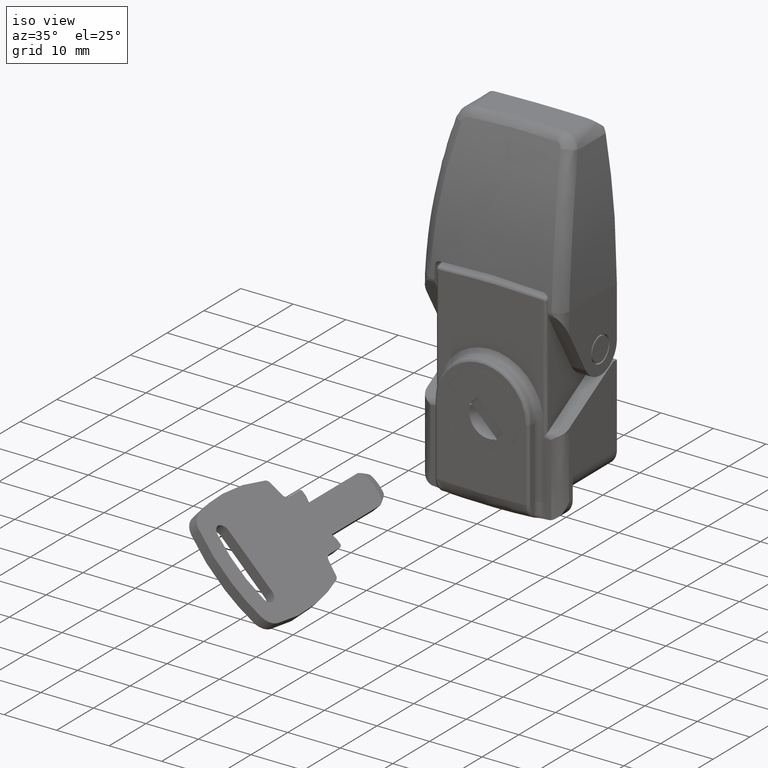
[diagram: clean part render]
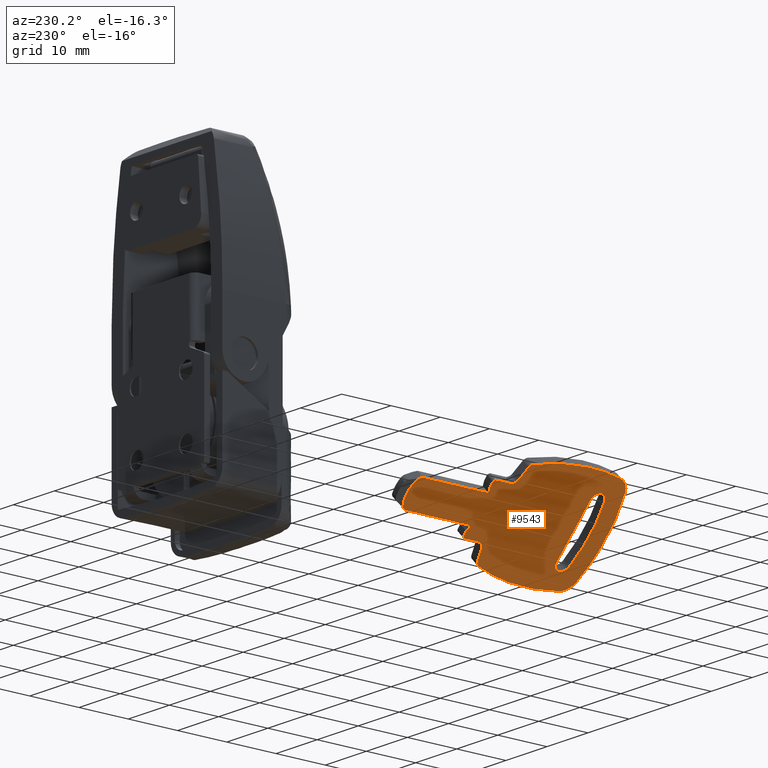
[diagram: tour spotlight — one face highlighted and labeled with its STEP entity id]
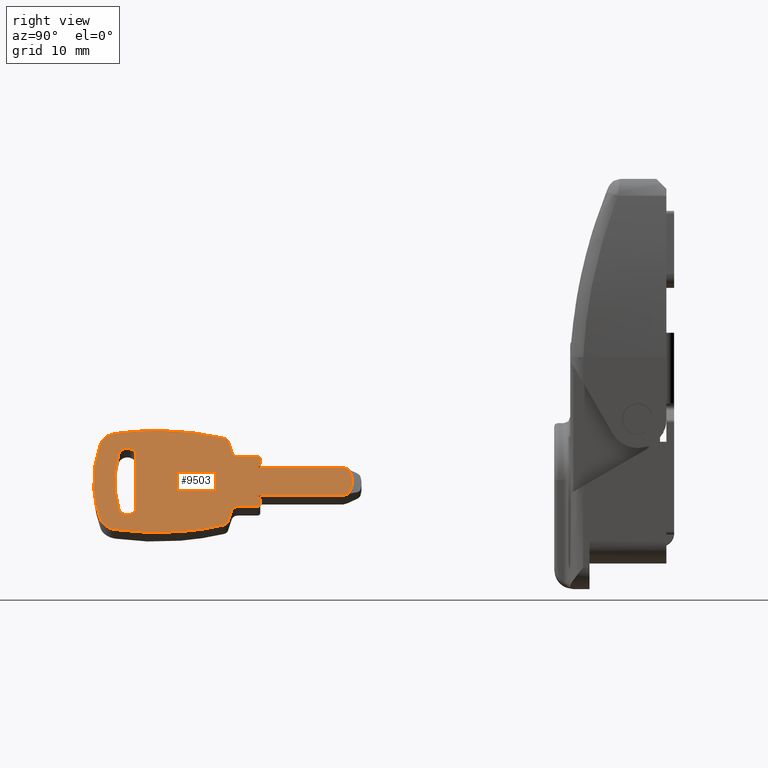
[diagram: tour spotlight — one face highlighted and labeled with its STEP entity id]
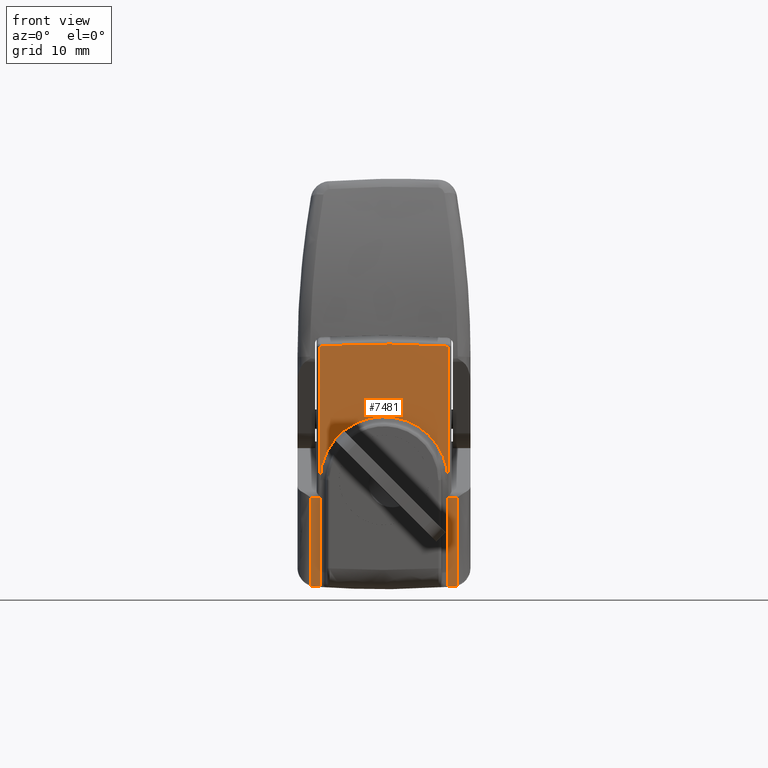
[diagram: tour spotlight — one face highlighted and labeled with its STEP entity id]
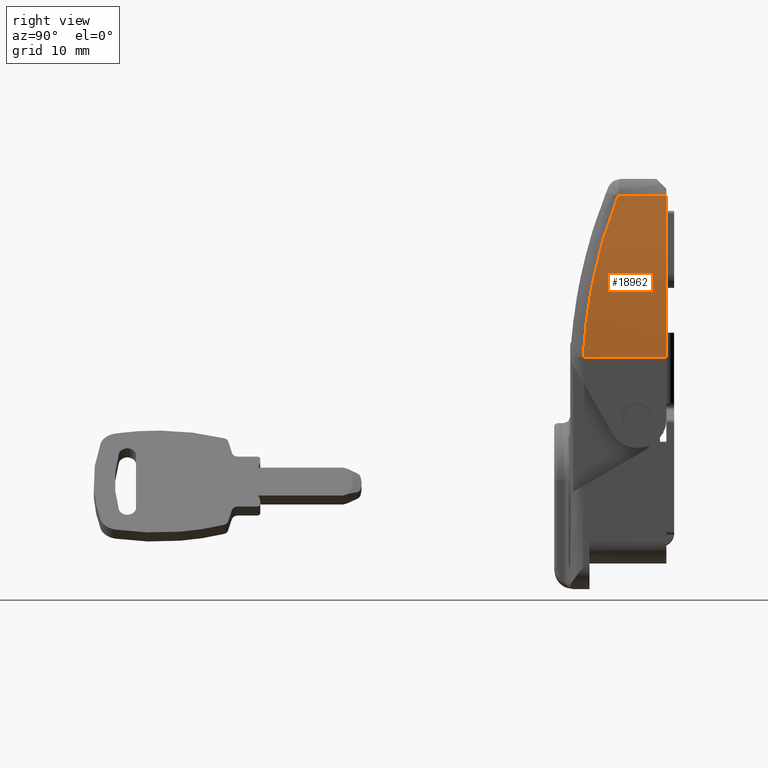
[diagram: tour spotlight — one face highlighted and labeled with its STEP entity id]
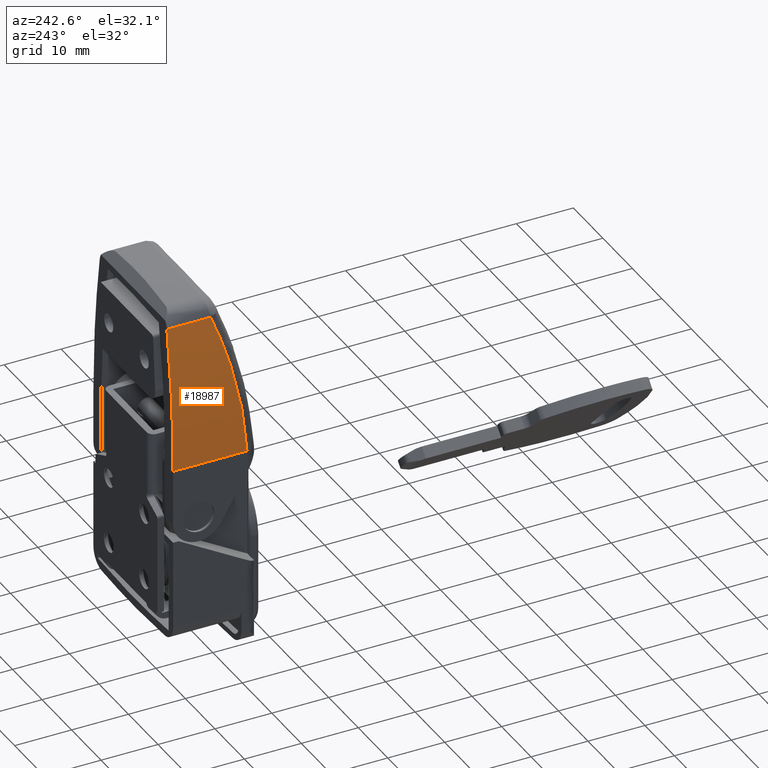
[diagram: tour spotlight — one face highlighted and labeled with its STEP entity id]
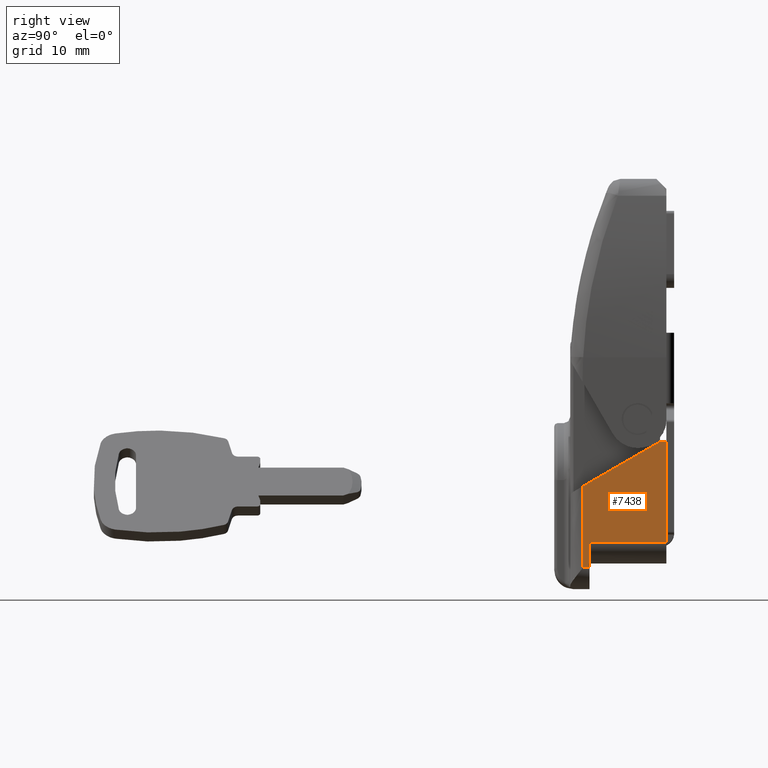
[diagram: tour spotlight — one face highlighted and labeled with its STEP entity id]
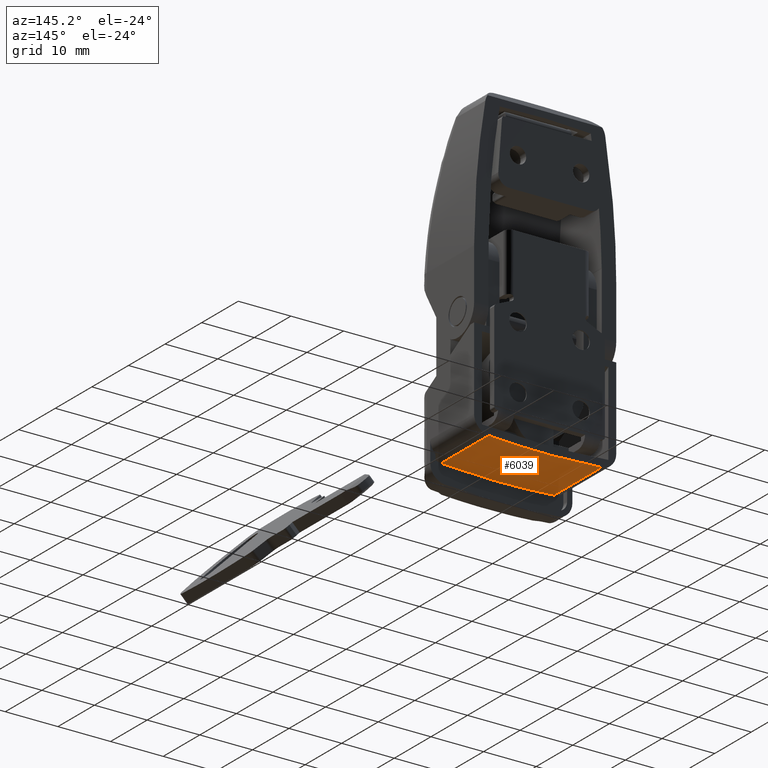
[diagram: tour spotlight — one face highlighted and labeled with its STEP entity id]
A machine part: a face-by-face anatomy tour. The part has 344 B-rep faces; the first image is the clean iso view, then the 7 largest visible faces are spotlighted one at a time (largest first), each with its STEP entity span.

Face 1 — auxiliary view, entity #9543. In plain terms, the highlighted face is a freeform B-spline surface patch.
Definition (entity closure, byte-faithful):
#8041=CARTESIAN_POINT('',(-53.091143516710702,0.999999999999986,-6.597351337324000));
#8042=VERTEX_POINT('',#8041);
#8102=CARTESIAN_POINT('',(-53.090209641132212,0.999999999999986,-12.000795968331380));
#8103=VERTEX_POINT('',#8102);
#8111=CARTESIAN_POINT('',(-53.090209641132162,0.999999999999986,-12.000795968331410));
#8112=CARTESIAN_POINT('',(-51.728180649243463,0.999999999999986,-9.298838173099215));
#8113=CARTESIAN_POINT('',(-53.091143516710638,0.999999999999986,-6.597351337323969));
#8121=(BOUNDED_CURVE()B_SPLINE_CURVE(2,(#8111,#8112,#8113),.UNSPECIFIED.,.F.,.U.)CURVE()GEOMETRIC_REPRESENTATION_ITEM()QUASI_UNIFORM_CURVE()RATIONAL_B_SPLINE_CURVE((1.0,0.892883845401888,1.0))REPRESENTATION_ITEM(''));
#8122=EDGE_CURVE('',#8103,#8042,#8121,.T.);
#8141=CARTESIAN_POINT('',(-87.588083112714500,1.0,-16.643062363722350));
#8142=VERTEX_POINT('',#8141);
#8143=CARTESIAN_POINT('',(-88.910791778683802,1.0,-15.428886184207551));
#8144=VERTEX_POINT('',#8143);
#8145=CARTESIAN_POINT('',(-87.588083112714500,1.0,-16.643062363722350));
#8146=CARTESIAN_POINT('',(-88.702974483263844,1.0,-16.530051970469099));
#8147=CARTESIAN_POINT('',(-88.910791778683787,1.0,-15.428886184207551));
#8155=(BOUNDED_CURVE()B_SPLINE_CURVE(2,(#8145,#8146,#8147),.UNSPECIFIED.,.F.,.U.)CURVE()GEOMETRIC_REPRESENTATION_ITEM()QUASI_UNIFORM_CURVE()RATIONAL_B_SPLINE_CURVE((1.0,0.801125457650990,1.0))REPRESENTATION_ITEM(''));
#8156=EDGE_CURVE('',#8142,#8144,#8155,.T.);
#8202=CARTESIAN_POINT('',(-88.904871763768298,1.0,-3.141394829502719));
#8203=VERTEX_POINT('',#8202);
#8204=CARTESIAN_POINT('',(-88.910791778683716,1.0,-15.428886184207540));
#8205=CARTESIAN_POINT('',(-90.193262521399348,1.0,-9.284521196615660));
#8206=CARTESIAN_POINT('',(-88.904871763768298,1.0,-3.141394829502719));
#8214=(BOUNDED_CURVE()B_SPLINE_CURVE(2,(#8204,#8205,#8206),.UNSPECIFIED.,.F.,.U.)CURVE()GEOMETRIC_REPRESENTATION_ITEM()QUASI_UNIFORM_CURVE()RATIONAL_B_SPLINE_CURVE((1.0,0.978805610668750,1.0))REPRESENTATION_ITEM(''));
#8215=EDGE_CURVE('',#8144,#8203,#8214,.T.);
#8255=CARTESIAN_POINT('',(-87.588082954910803,1.0,-1.956936743788145));
#8256=VERTEX_POINT('',#8255);
#8257=CARTESIAN_POINT('',(-88.904871763768384,1.0,-3.141394829502704));
#8258=CARTESIAN_POINT('',(-88.679662554792642,1.0,-2.067584019916000));
#8259=CARTESIAN_POINT('',(-87.588082954910803,1.0,-1.956936743788145));
#8267=(BOUNDED_CURVE()B_SPLINE_CURVE(2,(#8257,#8258,#8259),.UNSPECIFIED.,.F.,.U.)CURVE()GEOMETRIC_REPRESENTATION_ITEM()QUASI_UNIFORM_CURVE()RATIONAL_B_SPLINE_CURVE((1.0,0.807129773592300,1.0))REPRESENTATION_ITEM(''));
#8268=EDGE_CURVE('',#8203,#8256,#8267,.T.);
#8308=CARTESIAN_POINT('',(-86.239354533812701,1.0,-3.449289553755190));
#8309=VERTEX_POINT('',#8308);
#8310=CARTESIAN_POINT('',(-87.588082954910803,1.0,-1.956936743788149));
#8311=CARTESIAN_POINT('',(-86.239354533812701,1.0,-2.093649910009138));
#8312=CARTESIAN_POINT('',(-86.239354533812701,1.0,-3.449289553755190));
#8320=(BOUNDED_CURVE()B_SPLINE_CURVE(2,(#8310,#8311,#8312),.UNSPECIFIED.,.F.,.U.)CURVE()GEOMETRIC_REPRESENTATION_ITEM()QUASI_UNIFORM_CURVE()RATIONAL_B_SPLINE_CURVE((1.0,0.741905559781007,1.0))REPRESENTATION_ITEM(''));
#8321=EDGE_CURVE('',#8256,#8309,#8320,.T.);
#8352=CARTESIAN_POINT('',(-86.239354533812701,1.0,-15.150709553755300));
#8353=VERTEX_POINT('',#8352);
#8354=CARTESIAN_POINT('',(-86.239354533812701,1.0,-3.449289553755190));
#8355=CARTESIAN_POINT('',(-86.239354533812701,1.0,-15.150709553755300));
#8356=QUASI_UNIFORM_CURVE('',1,(#8354,#8355),.UNSPECIFIED.,.F.,.U.);
#8357=EDGE_CURVE('',#8309,#8353,#8356,.T.);
#8389=CARTESIAN_POINT('',(-86.239354533812701,1.0,-15.150709553755300));
#8390=CARTESIAN_POINT('',(-86.239354533812687,1.0,-16.506349340117993));
#8391=CARTESIAN_POINT('',(-87.588083112714500,1.0,-16.643062363722350));
#8399=(BOUNDED_CURVE()B_SPLINE_CURVE(2,(#8389,#8390,#8391),.UNSPECIFIED.,.F.,.U.)CURVE()GEOMETRIC_REPRESENTATION_ITEM()QUASI_UNIFORM_CURVE()RATIONAL_B_SPLINE_CURVE((1.0,0.741905524691455,1.0))REPRESENTATION_ITEM(''));
#8400=EDGE_CURVE('',#8353,#8142,#8399,.T.);
#8434=CARTESIAN_POINT('',(-67.347979533812605,1.0,-3.802572553755170));
#8435=VERTEX_POINT('',#8434);
#8436=CARTESIAN_POINT('',(-66.847979533812605,1.0,-4.302572553755169));
#8437=VERTEX_POINT('',#8436);
#8438=CARTESIAN_POINT('',(-67.347979533812605,1.0,-3.802572553755169));
#8439=CARTESIAN_POINT('',(-66.847979533812605,1.0,-3.802572553755169));
#8440=CARTESIAN_POINT('',(-66.847979533812605,1.0,-4.302572553755169));
#8448=(BOUNDED_CURVE()B_SPLINE_CURVE(2,(#8438,#8439,#8440),.UNSPECIFIED.,.F.,.U.)CURVE()GEOMETRIC_REPRESENTATION_ITEM()QUASI_UNIFORM_CURVE()RATIONAL_B_SPLINE_CURVE((1.0,0.707106781186548,1.0))REPRESENTATION_ITEM(''));
#8449=EDGE_CURVE('',#8435,#8437,#8448,.T.);
#8495=CARTESIAN_POINT('',(-66.847979533812605,1.0,-14.299289553755161));
#8496=VERTEX_POINT('',#8495);
#8497=CARTESIAN_POINT('',(-67.347979533812605,1.0,-14.799289553755161));
#8498=VERTEX_POINT('',#8497);
#8499=CARTESIAN_POINT('',(-66.847979533812605,1.0,-14.299289553755161));
#8500=CARTESIAN_POINT('',(-66.847979533812605,1.0,-14.799289553755161));
#8501=CARTESIAN_POINT('',(-67.347979533812605,1.0,-14.799289553755161));
#8509=(BOUNDED_CURVE()B_SPLINE_CURVE(2,(#8499,#8500,#8501),.UNSPECIFIED.,.F.,.U.)CURVE()GEOMETRIC_REPRESENTATION_ITEM()QUASI_UNIFORM_CURVE()RATIONAL_B_SPLINE_CURVE((1.0,0.707106781186548,1.0))REPRESENTATION_ITEM(''));
#8510=EDGE_CURVE('',#8496,#8498,#8509,.T.);
#8556=CARTESIAN_POINT('',(-72.510738931434602,1.0,0.259666620538963));
#8557=VERTEX_POINT('',#8556);
#8558=CARTESIAN_POINT('',(-71.863102587684594,1.0,-0.421692973211042));
#8559=VERTEX_POINT('',#8558);
#8560=CARTESIAN_POINT('',(-72.510738931434602,1.0,0.259666620538961));
#8561=CARTESIAN_POINT('',(-72.005505403498375,1.0,0.091423197903539));
#8562=CARTESIAN_POINT('',(-71.863102587684594,1.0,-0.421692973211044));
#8570=(BOUNDED_CURVE()B_SPLINE_CURVE(2,(#8560,#8561,#8562),.UNSPECIFIED.,.F.,.U.)CURVE()GEOMETRIC_REPRESENTATION_ITEM()QUASI_UNIFORM_CURVE()RATIONAL_B_SPLINE_CURVE((1.0,0.882654557323950,1.0))REPRESENTATION_ITEM(''));
#8571=EDGE_CURVE('',#8557,#8559,#8570,.T.);
#8617=CARTESIAN_POINT('',(-71.259370093074807,1.0,-2.992099612578695));
#8618=VERTEX_POINT('',#8617);
#8619=CARTESIAN_POINT('',(-70.277494594870689,1.0,-3.802572553755170));
#8620=VERTEX_POINT('',#8619);
#8621=CARTESIAN_POINT('',(-71.259370093074864,1.0,-2.992099612578707));
#8622=CARTESIAN_POINT('',(-71.102928107224130,1.0,-3.802572553755170));
#8623=CARTESIAN_POINT('',(-70.277494594870689,1.0,-3.802572553755170));
#8631=(BOUNDED_CURVE()B_SPLINE_CURVE(2,(#8621,#8622,#8623),.UNSPECIFIED.,.F.,.U.)CURVE()GEOMETRIC_REPRESENTATION_ITEM()QUASI_UNIFORM_CURVE()RATIONAL_B_SPLINE_CURVE((1.0,0.771209134678635,1.0))REPRESENTATION_ITEM(''));
#8632=EDGE_CURVE('',#8618,#8620,#8631,.T.);
#8678=CARTESIAN_POINT('',(-71.897118697238810,1.0,-18.192957210686949));
#8679=VERTEX_POINT('',#8678);
#8680=CARTESIAN_POINT('',(-72.544755040988804,1.0,-18.870972616936950));
#8681=VERTEX_POINT('',#8680);
#8682=CARTESIAN_POINT('',(-71.897118697238824,1.0,-18.192957210686949));
#8683=CARTESIAN_POINT('',(-72.041008052707042,1.0,-18.703831865091782));
#8684=CARTESIAN_POINT('',(-72.544755040988804,1.0,-18.870972616936939));
#8692=(BOUNDED_CURVE()B_SPLINE_CURVE(2,(#8682,#8683,#8684),.UNSPECIFIED.,.F.,.U.)CURVE()GEOMETRIC_REPRESENTATION_ITEM()QUASI_UNIFORM_CURVE()RATIONAL_B_SPLINE_CURVE((1.0,0.883298119994293,1.0))REPRESENTATION_ITEM(''));
#8693=EDGE_CURVE('',#8679,#8681,#8692,.T.);
#8739=CARTESIAN_POINT('',(-70.298694913769907,1.0,-14.799289553755161));
#8740=VERTEX_POINT('',#8739);
#8741=CARTESIAN_POINT('',(-71.279946873182993,1.0,-15.606560230225750));
#8742=VERTEX_POINT('',#8741);
#8743=CARTESIAN_POINT('',(-70.298694913769907,1.0,-14.799289553755150));
#8744=CARTESIAN_POINT('',(-71.121389501766970,1.0,-14.799289553755157));
#8745=CARTESIAN_POINT('',(-71.279946873182922,1.0,-15.606560230225760));
#8753=(BOUNDED_CURVE()B_SPLINE_CURVE(2,(#8743,#8744,#8745),.UNSPECIFIED.,.F.,.U.)CURVE()GEOMETRIC_REPRESENTATION_ITEM()QUASI_UNIFORM_CURVE()RATIONAL_B_SPLINE_CURVE((1.0,0.772246503238891,1.0))REPRESENTATION_ITEM(''));
#8754=EDGE_CURVE('',#8740,#8742,#8753,.T.);
#8858=CARTESIAN_POINT('',(-91.754115127126994,1.0,-0.873228107205179));
#8859=VERTEX_POINT('',#8858);
#8860=CARTESIAN_POINT('',(-89.445223227127002,1.0,1.301842892794824));
#8861=VERTEX_POINT('',#8860);
#8862=CARTESIAN_POINT('',(-91.754115127126994,1.0,-0.873228107205180));
#8863=CARTESIAN_POINT('',(-91.277021820079085,1.0,0.933334050203084));
#8864=CARTESIAN_POINT('',(-89.445223227127002,1.0,1.301842892794829));
#8872=(BOUNDED_CURVE()B_SPLINE_CURVE(2,(#8862,#8863,#8864),.UNSPECIFIED.,.F.,.U.)CURVE()GEOMETRIC_REPRESENTATION_ITEM()QUASI_UNIFORM_CURVE()RATIONAL_B_SPLINE_CURVE((1.0,0.848824094116112,1.0))REPRESENTATION_ITEM(''));
#8873=EDGE_CURVE('',#8859,#8861,#8872,.T.);
#8919=CARTESIAN_POINT('',(-89.444787527498690,1.0,-19.901929648354798));
#8920=VERTEX_POINT('',#8919);
#8921=CARTESIAN_POINT('',(-91.753679427498696,1.0,-17.727000648354799));
#8922=VERTEX_POINT('',#8921);
#8923=CARTESIAN_POINT('',(-89.444787527498690,1.0,-19.901929648354809));
#8924=CARTESIAN_POINT('',(-91.276513044607242,1.0,-19.533461173757203));
#8925=CARTESIAN_POINT('',(-91.753679427498682,1.0,-17.727000648354799));
#8933=(BOUNDED_CURVE()B_SPLINE_CURVE(2,(#8923,#8924,#8925),.UNSPECIFIED.,.F.,.U.)CURVE()GEOMETRIC_REPRESENTATION_ITEM()QUASI_UNIFORM_CURVE()RATIONAL_B_SPLINE_CURVE((1.0,0.848834201175573,1.0))REPRESENTATION_ITEM(''));
#8934=EDGE_CURVE('',#8920,#8922,#8933,.T.);
#8994=CARTESIAN_POINT('',(-71.259370093074736,1.0,-2.992099612578687));
#8995=CARTESIAN_POINT('',(-71.509780070081575,1.0,-1.694810336550676));
#8996=CARTESIAN_POINT('',(-71.863102587684494,1.0,-0.421692973211015));
#9004=(BOUNDED_CURVE()B_SPLINE_CURVE(2,(#8994,#8995,#8996),.UNSPECIFIED.,.F.,.U.)CURVE()GEOMETRIC_REPRESENTATION_ITEM()QUASI_UNIFORM_CURVE()RATIONAL_B_SPLINE_CURVE((1.0,0.999199463407042,1.0))REPRESENTATION_ITEM(''));
#9005=EDGE_CURVE('',#8618,#8559,#9004,.T.);
#9022=CARTESIAN_POINT('',(-67.347979533812605,1.0,-3.802572553755170));
#9023=CARTESIAN_POINT('',(-70.277494594870689,1.0,-3.802572553755170));
#9024=QUASI_UNIFORM_CURVE('',1,(#9022,#9023),.UNSPECIFIED.,.F.,.U.);
#9025=EDGE_CURVE('',#8435,#8620,#9024,.T.);
#9036=CARTESIAN_POINT('',(-66.847979533812605,1.0,-5.124289553755260));
#9037=VERTEX_POINT('',#9036);
#9038=CARTESIAN_POINT('',(-66.847979533812605,1.0,-5.124289553755260));
#9039=CARTESIAN_POINT('',(-66.847979533812605,1.0,-4.302572553755169));
#9040=QUASI_UNIFORM_CURVE('',1,(#9038,#9039),.UNSPECIFIED.,.F.,.U.);
#9041=EDGE_CURVE('',#9037,#8437,#9040,.T.);
#9071=CARTESIAN_POINT('',(-67.147979533812702,1.0,-6.224289553755170));
#9072=VERTEX_POINT('',#9071);
#9078=CARTESIAN_POINT('',(-67.147979533812702,1.0,-6.224289553755170));
#9079=CARTESIAN_POINT('',(-66.847979533812605,1.0,-5.124289553755260));
#9080=QUASI_UNIFORM_CURVE('',1,(#9078,#9079),.UNSPECIFIED.,.F.,.U.);
#9081=EDGE_CURVE('',#9072,#9037,#9080,.T.);
#9099=CARTESIAN_POINT('',(-53.897979533812702,1.0,-6.224289553755170));
#9100=VERTEX_POINT('',#9099);
#9106=CARTESIAN_POINT('',(-53.897979533812702,1.0,-6.224289553755170));
#9107=CARTESIAN_POINT('',(-67.147979533812702,1.0,-6.224289553755170));
#9108=QUASI_UNIFORM_CURVE('',1,(#9106,#9107),.UNSPECIFIED.,.F.,.U.);
#9109=EDGE_CURVE('',#9100,#9072,#9108,.T.);
#9123=CARTESIAN_POINT('',(-53.091143516710702,0.999999999999986,-6.597351337324000));
#9124=CARTESIAN_POINT('',(-53.897979533812702,1.0,-6.224289553755170));
#9125=QUASI_UNIFORM_CURVE('',1,(#9123,#9124),.UNSPECIFIED.,.F.,.U.);
#9126=EDGE_CURVE('',#8042,#9100,#9125,.T.);
#9171=CARTESIAN_POINT('',(-53.897979533812702,1.0,-12.374289553755260));
#9172=VERTEX_POINT('',#9171);
#9178=CARTESIAN_POINT('',(-53.897979533812702,1.0,-12.374289553755260));
#9179=CARTESIAN_POINT('',(-53.090209641132212,0.999999999999986,-12.000795968331380));
#9180=QUASI_UNIFORM_CURVE('',1,(#9178,#9179),.UNSPECIFIED.,.F.,.U.);
#9181=EDGE_CURVE('',#9172,#8103,#9180,.T.);
#9200=CARTESIAN_POINT('',(-67.147979533812602,1.0,-12.374289553755260));
#9201=VERTEX_POINT('',#9200);
#9207=CARTESIAN_POINT('',(-67.147979533812602,1.0,-12.374289553755260));
#9208=CARTESIAN_POINT('',(-53.897979533812702,1.0,-12.374289553755260));
#9209=QUASI_UNIFORM_CURVE('',1,(#9207,#9208),.UNSPECIFIED.,.F.,.U.);
#9210=EDGE_CURVE('',#9201,#9172,#9209,.T.);
#9228=CARTESIAN_POINT('',(-66.847979533812605,1.0,-13.474289553755160));
#9229=VERTEX_POINT('',#9228);
#9235=CARTESIAN_POINT('',(-66.847979533812605,1.0,-13.474289553755160));
#9236=CARTESIAN_POINT('',(-67.147979533812602,1.0,-12.374289553755260));
#9237=QUASI_UNIFORM_CURVE('',1,(#9235,#9236),.UNSPECIFIED.,.F.,.U.);
#9238=EDGE_CURVE('',#9229,#9201,#9237,.T.);
#9255=CARTESIAN_POINT('',(-66.847979533812605,1.0,-14.299289553755161));
#9256=CARTESIAN_POINT('',(-66.847979533812605,1.0,-13.474289553755160));
#9257=QUASI_UNIFORM_CURVE('',1,(#9255,#9256),.UNSPECIFIED.,.F.,.U.);
#9258=EDGE_CURVE('',#8496,#9229,#9257,.T.);
#9269=CARTESIAN_POINT('',(-70.298694913769907,1.0,-14.799289553755161));
#9270=CARTESIAN_POINT('',(-67.347979533812605,1.0,-14.799289553755161));
#9271=QUASI_UNIFORM_CURVE('',1,(#9269,#9270),.UNSPECIFIED.,.F.,.U.);
#9272=EDGE_CURVE('',#8740,#8498,#9271,.T.);
#9298=CARTESIAN_POINT('',(-71.897118697238696,1.0,-18.192957210686981));
#9299=CARTESIAN_POINT('',(-71.536389971038560,1.0,-16.912201155232374));
#9300=CARTESIAN_POINT('',(-71.279946873182880,1.0,-15.606560230225790));
#9308=(BOUNDED_CURVE()B_SPLINE_CURVE(2,(#9298,#9299,#9300),.UNSPECIFIED.,.F.,.U.)CURVE()GEOMETRIC_REPRESENTATION_ITEM()QUASI_UNIFORM_CURVE()RATIONAL_B_SPLINE_CURVE((1.0,0.999188105859206,1.0))REPRESENTATION_ITEM(''));
#9309=EDGE_CURVE('',#8679,#8742,#9308,.T.);
#9343=CARTESIAN_POINT('',(-89.444787527498690,1.0,-19.901929648354809));
#9344=CARTESIAN_POINT('',(-80.857953215182391,1.0,-21.629250533023029));
#9345=CARTESIAN_POINT('',(-72.544755040988804,1.0,-18.870972616936950));
#9353=(BOUNDED_CURVE()B_SPLINE_CURVE(2,(#9343,#9344,#9345),.UNSPECIFIED.,.F.,.U.)CURVE()GEOMETRIC_REPRESENTATION_ITEM()QUASI_UNIFORM_CURVE()RATIONAL_B_SPLINE_CURVE((1.0,0.966534382222841,1.0))REPRESENTATION_ITEM(''));
#9354=EDGE_CURVE('',#8920,#8681,#9353,.T.);
#9388=CARTESIAN_POINT('',(-91.754115127126994,1.0,-0.873228107205177));
#9389=CARTESIAN_POINT('',(-93.979578819780585,1.0,-9.300171915557865));
#9390=CARTESIAN_POINT('',(-91.753679427498724,1.0,-17.727000648354789));
#9398=(BOUNDED_CURVE()B_SPLINE_CURVE(2,(#9388,#9389,#9390),.UNSPECIFIED.,.F.,.U.)CURVE()GEOMETRIC_REPRESENTATION_ITEM()QUASI_UNIFORM_CURVE()RATIONAL_B_SPLINE_CURVE((1.0,0.966845992550359,1.0))REPRESENTATION_ITEM(''));
#9399=EDGE_CURVE('',#8859,#8922,#9398,.T.);
#9447=CARTESIAN_POINT('',(-72.510738931434588,1.0,0.259666620538945));
#9448=CARTESIAN_POINT('',(-80.839367354141373,1.0,3.033110729481162));
#9449=CARTESIAN_POINT('',(-89.445223227127002,1.0,1.301842892794815));
#9457=(BOUNDED_CURVE()B_SPLINE_CURVE(2,(#9447,#9448,#9449),.UNSPECIFIED.,.F.,.U.)CURVE()GEOMETRIC_REPRESENTATION_ITEM()QUASI_UNIFORM_CURVE()RATIONAL_B_SPLINE_CURVE((1.0,0.966393177596174,1.0))REPRESENTATION_ITEM(''));
#9458=EDGE_CURVE('',#8557,#8861,#9457,.T.);
#9504=CARTESIAN_POINT('',(-94.865956403373545,1.0,3.072747421678262));
#9505=CARTESIAN_POINT('',(-50.429998811864827,1.0,3.072747421678262));
#9506=CARTESIAN_POINT('',(-94.865956403373545,1.0,-21.672643173088019));
#9507=CARTESIAN_POINT('',(-50.429998811864827,1.0,-21.672643173088019));
#9508=B_SPLINE_SURFACE_WITH_KNOTS('',1,1,((#9504,#9506),(#9505,#9507)),.UNSPECIFIED.,.F.,.F.,.U.,(2,2),(2,2),(0.0,44.435957591508711),(0.0,24.745390594766292),.UNSPECIFIED.);
#9509=ORIENTED_EDGE('',*,*,#9126,.F.);
#9510=ORIENTED_EDGE('',*,*,#8122,.F.);
#9511=ORIENTED_EDGE('',*,*,#9181,.F.);
#9512=ORIENTED_EDGE('',*,*,#9210,.F.);
#9513=ORIENTED_EDGE('',*,*,#9238,.F.);
#9514=ORIENTED_EDGE('',*,*,#9258,.F.);
#9515=ORIENTED_EDGE('',*,*,#8510,.T.);
#9516=ORIENTED_EDGE('',*,*,#9272,.F.);
#9517=ORIENTED_EDGE('',*,*,#8754,.T.);
#9518=ORIENTED_EDGE('',*,*,#9309,.F.);
#9519=ORIENTED_EDGE('',*,*,#8693,.T.);
#9520=ORIENTED_EDGE('',*,*,#9354,.F.);
#9521=ORIENTED_EDGE('',*,*,#8934,.T.);
#9522=ORIENTED_EDGE('',*,*,#9399,.F.);
#9523=ORIENTED_EDGE('',*,*,#8873,.T.);
#9524=ORIENTED_EDGE('',*,*,#9458,.F.);
#9525=ORIENTED_EDGE('',*,*,#8571,.T.);
#9526=ORIENTED_EDGE('',*,*,#9005,.F.);
#9527=ORIENTED_EDGE('',*,*,#8632,.T.);
#9528=ORIENTED_EDGE('',*,*,#9025,.F.);
#9529=ORIENTED_EDGE('',*,*,#8449,.T.);
#9530=ORIENTED_EDGE('',*,*,#9041,.F.);
#9531=ORIENTED_EDGE('',*,*,#9081,.F.);
#9532=ORIENTED_EDGE('',*,*,#9109,.F.);
#9533=EDGE_LOOP('',(#9509,#9510,#9511,#9512,#9513,#9514,#9515,#9516,#9517,#9518,#9519,#9520,#9521,#9522,#9523,#9524,#9525,#9526,#9527,#9528,#9529,#9530,#9531,#9532));
#9534=FACE_OUTER_BOUND('',#9533,.T.);
#9535=ORIENTED_EDGE('',*,*,#8400,.F.);
#9536=ORIENTED_EDGE('',*,*,#8357,.F.);
#9537=ORIENTED_EDGE('',*,*,#8321,.F.);
#9538=ORIENTED_EDGE('',*,*,#8268,.F.);
#9539=ORIENTED_EDGE('',*,*,#8215,.F.);
#9540=ORIENTED_EDGE('',*,*,#8156,.F.);
#9541=EDGE_LOOP('',(#9535,#9536,#9537,#9538,#9539,#9540));
#9542=FACE_BOUND('',#9541,.T.);
#9543=ADVANCED_FACE('',(#9534,#9542),#9508,.T.);

Face 2 — right view, entity #9503. In plain terms, the highlighted face is a freeform B-spline surface patch.
Definition (entity closure, byte-faithful):
#7943=CARTESIAN_POINT('',(-53.091143516710702,-0.999999999999973,-6.597351337324000));
#7944=VERTEX_POINT('',#7943);
#7952=CARTESIAN_POINT('',(-53.090209641132212,-0.999999999999973,-12.000795968331380));
#7953=VERTEX_POINT('',#7952);
#7954=CARTESIAN_POINT('',(-53.090209641132162,-0.999999999999971,-12.000795968331410));
#7955=CARTESIAN_POINT('',(-51.728180649243463,-0.999999999999971,-9.298838173099215));
#7956=CARTESIAN_POINT('',(-53.091143516710638,-0.999999999999971,-6.597351337323969));
#7964=(BOUNDED_CURVE()B_SPLINE_CURVE(2,(#7954,#7955,#7956),.UNSPECIFIED.,.F.,.U.)CURVE()GEOMETRIC_REPRESENTATION_ITEM()QUASI_UNIFORM_CURVE()RATIONAL_B_SPLINE_CURVE((1.0,0.892883845401888,1.0))REPRESENTATION_ITEM(''));
#7965=EDGE_CURVE('',#7953,#7944,#7964,.T.);
#8158=CARTESIAN_POINT('',(-88.910791778683802,-1.0,-15.428886184207551));
#8159=VERTEX_POINT('',#8158);
#8165=CARTESIAN_POINT('',(-87.588083112714500,-1.0,-16.643062363722350));
#8166=VERTEX_POINT('',#8165);
#8167=CARTESIAN_POINT('',(-87.588083112714500,-1.0,-16.643062363722350));
#8168=CARTESIAN_POINT('',(-88.702974483263844,-1.0,-16.530051970469099));
#8169=CARTESIAN_POINT('',(-88.910791778683787,-1.0,-15.428886184207551));
#8177=(BOUNDED_CURVE()B_SPLINE_CURVE(2,(#8167,#8168,#8169),.UNSPECIFIED.,.F.,.U.)CURVE()GEOMETRIC_REPRESENTATION_ITEM()QUASI_UNIFORM_CURVE()RATIONAL_B_SPLINE_CURVE((1.0,0.801125457650990,1.0))REPRESENTATION_ITEM(''));
#8178=EDGE_CURVE('',#8166,#8159,#8177,.T.);
#8217=CARTESIAN_POINT('',(-88.904871763768298,-1.0,-3.141394829502719));
#8218=VERTEX_POINT('',#8217);
#8224=CARTESIAN_POINT('',(-88.910791778683716,-1.0,-15.428886184207540));
#8225=CARTESIAN_POINT('',(-90.193262521399348,-1.0,-9.284521196615660));
#8226=CARTESIAN_POINT('',(-88.904871763768298,-1.0,-3.141394829502719));
#8234=(BOUNDED_CURVE()B_SPLINE_CURVE(2,(#8224,#8225,#8226),.UNSPECIFIED.,.F.,.U.)CURVE()GEOMETRIC_REPRESENTATION_ITEM()QUASI_UNIFORM_CURVE()RATIONAL_B_SPLINE_CURVE((1.0,0.978805610668750,1.0))REPRESENTATION_ITEM(''));
#8235=EDGE_CURVE('',#8159,#8218,#8234,.T.);
#8270=CARTESIAN_POINT('',(-87.588082954910803,-1.0,-1.956936743788145));
#8271=VERTEX_POINT('',#8270);
#8277=CARTESIAN_POINT('',(-88.904871763768384,-1.0,-3.141394829502704));
#8278=CARTESIAN_POINT('',(-88.679662554792642,-1.0,-2.067584019916000));
#8279=CARTESIAN_POINT('',(-87.588082954910803,-1.0,-1.956936743788145));
#8287=(BOUNDED_CURVE()B_SPLINE_CURVE(2,(#8277,#8278,#8279),.UNSPECIFIED.,.F.,.U.)CURVE()GEOMETRIC_REPRESENTATION_ITEM()QUASI_UNIFORM_CURVE()RATIONAL_B_SPLINE_CURVE((1.0,0.807129773592300,1.0))REPRESENTATION_ITEM(''));
#8288=EDGE_CURVE('',#8218,#8271,#8287,.T.);
#8323=CARTESIAN_POINT('',(-86.239354533812701,-1.0,-3.449289553755190));
#8324=VERTEX_POINT('',#8323);
#8330=CARTESIAN_POINT('',(-87.588082954910803,-1.0,-1.956936743788149));
#8331=CARTESIAN_POINT('',(-86.239354533812701,-1.0,-2.093649910009138));
#8332=CARTESIAN_POINT('',(-86.239354533812701,-1.0,-3.449289553755190));
#8340=(BOUNDED_CURVE()B_SPLINE_CURVE(2,(#8330,#8331,#8332),.UNSPECIFIED.,.F.,.U.)CURVE()GEOMETRIC_REPRESENTATION_ITEM()QUASI_UNIFORM_CURVE()RATIONAL_B_SPLINE_CURVE((1.0,0.741905559781007,1.0))REPRESENTATION_ITEM(''));
#8341=EDGE_CURVE('',#8271,#8324,#8340,.T.);
#8359=CARTESIAN_POINT('',(-86.239354533812701,-1.0,-15.150709553755300));
#8360=VERTEX_POINT('',#8359);
#8366=CARTESIAN_POINT('',(-86.239354533812701,-1.0,-3.449289553755190));
#8367=CARTESIAN_POINT('',(-86.239354533812701,-1.0,-15.150709553755300));
#8368=QUASI_UNIFORM_CURVE('',1,(#8366,#8367),.UNSPECIFIED.,.F.,.U.);
#8369=EDGE_CURVE('',#8324,#8360,#8368,.T.);
#8403=CARTESIAN_POINT('',(-86.239354533812701,-1.0,-15.150709553755300));
#8404=CARTESIAN_POINT('',(-86.239354533812687,-1.0,-16.506349340117993));
#8405=CARTESIAN_POINT('',(-87.588083112714500,-1.0,-16.643062363722350));
#8413=(BOUNDED_CURVE()B_SPLINE_CURVE(2,(#8403,#8404,#8405),.UNSPECIFIED.,.F.,.U.)CURVE()GEOMETRIC_REPRESENTATION_ITEM()QUASI_UNIFORM_CURVE()RATIONAL_B_SPLINE_CURVE((1.0,0.741905524691455,1.0))REPRESENTATION_ITEM(''));
#8414=EDGE_CURVE('',#8360,#8166,#8413,.T.);
#8451=CARTESIAN_POINT('',(-67.347979533812605,-1.0,-3.802572553755170));
#8452=VERTEX_POINT('',#8451);
#8458=CARTESIAN_POINT('',(-66.847979533812605,-1.0,-4.302572553755169));
#8459=VERTEX_POINT('',#8458);
#8460=CARTESIAN_POINT('',(-66.847979533812605,-1.0,-4.302572553755169));
#8461=CARTESIAN_POINT('',(-66.847979533812605,-1.0,-3.802572553755169));
#8462=CARTESIAN_POINT('',(-67.347979533812605,-1.0,-3.802572553755169));
#8470=(BOUNDED_CURVE()B_SPLINE_CURVE(2,(#8460,#8461,#8462),.UNSPECIFIED.,.F.,.U.)CURVE()GEOMETRIC_REPRESENTATION_ITEM()QUASI_UNIFORM_CURVE()RATIONAL_B_SPLINE_CURVE((1.0,0.707106781186548,1.0))REPRESENTATION_ITEM(''));
#8471=EDGE_CURVE('',#8459,#8452,#8470,.T.);
#8512=CARTESIAN_POINT('',(-66.847979533812605,-1.0,-14.299289553755161));
#8513=VERTEX_POINT('',#8512);
#8519=CARTESIAN_POINT('',(-67.347979533812605,-1.0,-14.799289553755161));
#8520=VERTEX_POINT('',#8519);
#8521=CARTESIAN_POINT('',(-67.347979533812605,-1.0,-14.799289553755161));
#8522=CARTESIAN_POINT('',(-66.847979533812605,-1.0,-14.799289553755161));
#8523=CARTESIAN_POINT('',(-66.847979533812605,-1.0,-14.299289553755161));
#8531=(BOUNDED_CURVE()B_SPLINE_CURVE(2,(#8521,#8522,#8523),.UNSPECIFIED.,.F.,.U.)CURVE()GEOMETRIC_REPRESENTATION_ITEM()QUASI_UNIFORM_CURVE()RATIONAL_B_SPLINE_CURVE((1.0,0.707106781186548,1.0))REPRESENTATION_ITEM(''));
#8532=EDGE_CURVE('',#8520,#8513,#8531,.T.);
#8573=CARTESIAN_POINT('',(-72.510738931434602,-1.0,0.259666620538963));
#8574=VERTEX_POINT('',#8573);
#8580=CARTESIAN_POINT('',(-71.863102587684594,-1.0,-0.421692973211042));
#8581=VERTEX_POINT('',#8580);
#8582=CARTESIAN_POINT('',(-71.863102587684594,-1.0,-0.421692973211044));
#8583=CARTESIAN_POINT('',(-72.005505403498361,-1.0,0.091423197903539));
#8584=CARTESIAN_POINT('',(-72.510738931434602,-1.0,0.259666620538961));
#8592=(BOUNDED_CURVE()B_SPLINE_CURVE(2,(#8582,#8583,#8584),.UNSPECIFIED.,.F.,.U.)CURVE()GEOMETRIC_REPRESENTATION_ITEM()QUASI_UNIFORM_CURVE()RATIONAL_B_SPLINE_CURVE((1.0,0.882654557323951,1.0))REPRESENTATION_ITEM(''));
#8593=EDGE_CURVE('',#8581,#8574,#8592,.T.);
#8634=CARTESIAN_POINT('',(-71.259370093074807,-1.0,-2.992099612578695));
#8635=VERTEX_POINT('',#8634);
#8641=CARTESIAN_POINT('',(-70.277494594870689,-1.0,-3.802572553755170));
#8642=VERTEX_POINT('',#8641);
#8643=CARTESIAN_POINT('',(-70.277494594870689,-1.0,-3.802572553755170));
#8644=CARTESIAN_POINT('',(-71.102928107224145,-1.0,-3.802572553755169));
#8645=CARTESIAN_POINT('',(-71.259370093074864,-1.0,-2.992099612578708));
#8653=(BOUNDED_CURVE()B_SPLINE_CURVE(2,(#8643,#8644,#8645),.UNSPECIFIED.,.F.,.U.)CURVE()GEOMETRIC_REPRESENTATION_ITEM()QUASI_UNIFORM_CURVE()RATIONAL_B_SPLINE_CURVE((1.0,0.771209134678635,1.0))REPRESENTATION_ITEM(''));
#8654=EDGE_CURVE('',#8642,#8635,#8653,.T.);
#8695=CARTESIAN_POINT('',(-71.897118697238810,-1.0,-18.192957210686949));
#8696=VERTEX_POINT('',#8695);
#8702=CARTESIAN_POINT('',(-72.544755040988804,-1.0,-18.870972616936950));
#8703=VERTEX_POINT('',#8702);
#8704=CARTESIAN_POINT('',(-72.544755040988804,-1.0,-18.870972616936939));
#8705=CARTESIAN_POINT('',(-72.041008052707042,-1.0,-18.703831865091775));
#8706=CARTESIAN_POINT('',(-71.897118697238824,-1.0,-18.192957210686949));
#8714=(BOUNDED_CURVE()B_SPLINE_CURVE(2,(#8704,#8705,#8706),.UNSPECIFIED.,.F.,.U.)CURVE()GEOMETRIC_REPRESENTATION_ITEM()QUASI_UNIFORM_CURVE()RATIONAL_B_SPLINE_CURVE((1.0,0.883298119994293,1.0))REPRESENTATION_ITEM(''));
#8715=EDGE_CURVE('',#8703,#8696,#8714,.T.);
#8756=CARTESIAN_POINT('',(-70.298694913769907,-1.0,-14.799289553755161));
#8757=VERTEX_POINT('',#8756);
#8763=CARTESIAN_POINT('',(-71.279946873182993,-1.0,-15.606560230225750));
#8764=VERTEX_POINT('',#8763);
#8765=CARTESIAN_POINT('',(-71.279946873182922,-1.0,-15.606560230225760));
#8766=CARTESIAN_POINT('',(-71.121389501766984,-1.0,-14.799289553755145));
#8767=CARTESIAN_POINT('',(-70.298694913769907,-1.0,-14.799289553755150));
#8775=(BOUNDED_CURVE()B_SPLINE_CURVE(2,(#8765,#8766,#8767),.UNSPECIFIED.,.F.,.U.)CURVE()GEOMETRIC_REPRESENTATION_ITEM()QUASI_UNIFORM_CURVE()RATIONAL_B_SPLINE_CURVE((1.0,0.772246503238890,1.0))REPRESENTATION_ITEM(''));
#8776=EDGE_CURVE('',#8764,#8757,#8775,.T.);
#8875=CARTESIAN_POINT('',(-91.754115127126994,-1.0,-0.873228107205179));
#8876=VERTEX_POINT('',#8875);
#8882=CARTESIAN_POINT('',(-89.445223227127002,-1.0,1.301842892794824));
#8883=VERTEX_POINT('',#8882);
#8884=CARTESIAN_POINT('',(-89.445223227127002,-1.0,1.301842892794829));
#8885=CARTESIAN_POINT('',(-91.277021820079085,-1.0,0.933334050203084));
#8886=CARTESIAN_POINT('',(-91.754115127126994,-1.0,-0.873228107205179));
#8894=(BOUNDED_CURVE()B_SPLINE_CURVE(2,(#8884,#8885,#8886),.UNSPECIFIED.,.F.,.U.)CURVE()GEOMETRIC_REPRESENTATION_ITEM()QUASI_UNIFORM_CURVE()RATIONAL_B_SPLINE_CURVE((1.0,0.848824094116112,1.0))REPRESENTATION_ITEM(''));
#8895=EDGE_CURVE('',#8883,#8876,#8894,.T.);
#8936=CARTESIAN_POINT('',(-89.444787527498690,-1.0,-19.901929648354798));
#8937=VERTEX_POINT('',#8936);
#8943=CARTESIAN_POINT('',(-91.753679427498696,-1.0,-17.727000648354799));
#8944=VERTEX_POINT('',#8943);
#8945=CARTESIAN_POINT('',(-91.753679427498682,-1.0,-17.727000648354799));
#8946=CARTESIAN_POINT('',(-91.276513044607256,-1.0,-19.533461173757214));
#8947=CARTESIAN_POINT('',(-89.444787527498690,-1.0,-19.901929648354809));
#8955=(BOUNDED_CURVE()B_SPLINE_CURVE(2,(#8945,#8946,#8947),.UNSPECIFIED.,.F.,.U.)CURVE()GEOMETRIC_REPRESENTATION_ITEM()QUASI_UNIFORM_CURVE()RATIONAL_B_SPLINE_CURVE((1.0,0.848834201175573,1.0))REPRESENTATION_ITEM(''));
#8956=EDGE_CURVE('',#8944,#8937,#8955,.T.);
#8980=CARTESIAN_POINT('',(-71.259370093074736,-1.0,-2.992099612578687));
#8981=CARTESIAN_POINT('',(-71.509780070081575,-1.0,-1.694810336550676));
#8982=CARTESIAN_POINT('',(-71.863102587684494,-1.0,-0.421692973211015));
#8990=(BOUNDED_CURVE()B_SPLINE_CURVE(2,(#8980,#8981,#8982),.UNSPECIFIED.,.F.,.U.)CURVE()GEOMETRIC_REPRESENTATION_ITEM()QUASI_UNIFORM_CURVE()RATIONAL_B_SPLINE_CURVE((1.0,0.999199463407042,1.0))REPRESENTATION_ITEM(''));
#8991=EDGE_CURVE('',#8635,#8581,#8990,.T.);
#9016=CARTESIAN_POINT('',(-67.347979533812605,-1.0,-3.802572553755170));
#9017=CARTESIAN_POINT('',(-70.277494594870689,-1.0,-3.802572553755170));
#9018=QUASI_UNIFORM_CURVE('',1,(#9016,#9017),.UNSPECIFIED.,.F.,.U.);
#9019=EDGE_CURVE('',#8452,#8642,#9018,.T.);
#9044=CARTESIAN_POINT('',(-66.847979533812605,-1.0,-5.124289553755260));
#9045=VERTEX_POINT('',#9044);
#9046=CARTESIAN_POINT('',(-66.847979533812605,-1.0,-5.124289553755260));
#9047=CARTESIAN_POINT('',(-66.847979533812605,-1.0,-4.302572553755169));
#9048=QUASI_UNIFORM_CURVE('',1,(#9046,#9047),.UNSPECIFIED.,.F.,.U.);
#9049=EDGE_CURVE('',#9045,#8459,#9048,.T.);
#9064=CARTESIAN_POINT('',(-67.147979533812702,-1.0,-6.224289553755170));
#9065=VERTEX_POINT('',#9064);
#9066=CARTESIAN_POINT('',(-67.147979533812702,-1.0,-6.224289553755170));
#9067=CARTESIAN_POINT('',(-66.847979533812605,-1.0,-5.124289553755260));
#9068=QUASI_UNIFORM_CURVE('',1,(#9066,#9067),.UNSPECIFIED.,.F.,.U.);
#9069=EDGE_CURVE('',#9065,#9045,#9068,.T.);
#9092=CARTESIAN_POINT('',(-53.897979533812702,-1.0,-6.224289553755170));
#9093=VERTEX_POINT('',#9092);
#9094=CARTESIAN_POINT('',(-53.897979533812702,-1.0,-6.224289553755170));
#9095=CARTESIAN_POINT('',(-67.147979533812702,-1.0,-6.224289553755170));
#9096=QUASI_UNIFORM_CURVE('',1,(#9094,#9095),.UNSPECIFIED.,.F.,.U.);
#9097=EDGE_CURVE('',#9093,#9065,#9096,.T.);
#9129=CARTESIAN_POINT('',(-53.091143516710702,-0.999999999999973,-6.597351337324000));
#9130=CARTESIAN_POINT('',(-53.897979533812702,-1.0,-6.224289553755170));
#9131=QUASI_UNIFORM_CURVE('',1,(#9129,#9130),.UNSPECIFIED.,.F.,.U.);
#9132=EDGE_CURVE('',#7944,#9093,#9131,.T.);
#9164=CARTESIAN_POINT('',(-53.897979533812702,-1.0,-12.374289553755260));
#9165=VERTEX_POINT('',#9164);
#9166=CARTESIAN_POINT('',(-53.897979533812702,-1.0,-12.374289553755260));
#9167=CARTESIAN_POINT('',(-53.090209641132212,-0.999999999999973,-12.000795968331380));
#9168=QUASI_UNIFORM_CURVE('',1,(#9166,#9167),.UNSPECIFIED.,.F.,.U.);
#9169=EDGE_CURVE('',#9165,#7953,#9168,.T.);
#9193=CARTESIAN_POINT('',(-67.147979533812602,-1.0,-12.374289553755260));
#9194=VERTEX_POINT('',#9193);
#9195=CARTESIAN_POINT('',(-67.147979533812602,-1.0,-12.374289553755260));
#9196=CARTESIAN_POINT('',(-53.897979533812702,-1.0,-12.374289553755260));
#9197=QUASI_UNIFORM_CURVE('',1,(#9195,#9196),.UNSPECIFIED.,.F.,.U.);
#9198=EDGE_CURVE('',#9194,#9165,#9197,.T.);
#9221=CARTESIAN_POINT('',(-66.847979533812605,-1.0,-13.474289553755160));
#9222=VERTEX_POINT('',#9221);
#9223=CARTESIAN_POINT('',(-66.847979533812605,-1.0,-13.474289553755160));
#9224=CARTESIAN_POINT('',(-67.147979533812602,-1.0,-12.374289553755260));
#9225=QUASI_UNIFORM_CURVE('',1,(#9223,#9224),.UNSPECIFIED.,.F.,.U.);
#9226=EDGE_CURVE('',#9222,#9194,#9225,.T.);
#9249=CARTESIAN_POINT('',(-66.847979533812605,-1.0,-14.299289553755161));
#9250=CARTESIAN_POINT('',(-66.847979533812605,-1.0,-13.474289553755160));
#9251=QUASI_UNIFORM_CURVE('',1,(#9249,#9250),.UNSPECIFIED.,.F.,.U.);
#9252=EDGE_CURVE('',#8513,#9222,#9251,.T.);
#9275=CARTESIAN_POINT('',(-70.298694913769907,-1.0,-14.799289553755161));
#9276=CARTESIAN_POINT('',(-67.347979533812605,-1.0,-14.799289553755161));
#9277=QUASI_UNIFORM_CURVE('',1,(#9275,#9276),.UNSPECIFIED.,.F.,.U.);
#9278=EDGE_CURVE('',#8757,#8520,#9277,.T.);
#9312=CARTESIAN_POINT('',(-71.897118697238696,-1.0,-18.192957210686981));
#9313=CARTESIAN_POINT('',(-71.536389971038560,-1.0,-16.912201155232374));
#9314=CARTESIAN_POINT('',(-71.279946873182880,-1.0,-15.606560230225790));
#9322=(BOUNDED_CURVE()B_SPLINE_CURVE(2,(#9312,#9313,#9314),.UNSPECIFIED.,.F.,.U.)CURVE()GEOMETRIC_REPRESENTATION_ITEM()QUASI_UNIFORM_CURVE()RATIONAL_B_SPLINE_CURVE((1.0,0.999188105859206,1.0))REPRESENTATION_ITEM(''));
#9323=EDGE_CURVE('',#8696,#8764,#9322,.T.);
#9357=CARTESIAN_POINT('',(-89.444787527498690,-1.0,-19.901929648354809));
#9358=CARTESIAN_POINT('',(-80.857953215182391,-1.0,-21.629250533023029));
#9359=CARTESIAN_POINT('',(-72.544755040988804,-1.0,-18.870972616936950));
#9367=(BOUNDED_CURVE()B_SPLINE_CURVE(2,(#9357,#9358,#9359),.UNSPECIFIED.,.F.,.U.)CURVE()GEOMETRIC_REPRESENTATION_ITEM()QUASI_UNIFORM_CURVE()RATIONAL_B_SPLINE_CURVE((1.0,0.966534382222841,1.0))REPRESENTATION_ITEM(''));
#9368=EDGE_CURVE('',#8937,#8703,#9367,.T.);
#9402=CARTESIAN_POINT('',(-91.754115127126994,-1.0,-0.873228107205177));
#9403=CARTESIAN_POINT('',(-93.979578819780585,-1.0,-9.300171915557865));
#9404=CARTESIAN_POINT('',(-91.753679427498724,-1.0,-17.727000648354789));
#9412=(BOUNDED_CURVE()B_SPLINE_CURVE(2,(#9402,#9403,#9404),.UNSPECIFIED.,.F.,.U.)CURVE()GEOMETRIC_REPRESENTATION_ITEM()QUASI_UNIFORM_CURVE()RATIONAL_B_SPLINE_CURVE((1.0,0.966845992550359,1.0))REPRESENTATION_ITEM(''));
#9413=EDGE_CURVE('',#8876,#8944,#9412,.T.);
#9433=CARTESIAN_POINT('',(-72.510738931434588,-1.0,0.259666620538945));
#9434=CARTESIAN_POINT('',(-80.839367354141373,-1.0,3.033110729481162));
#9435=CARTESIAN_POINT('',(-89.445223227127002,-1.0,1.301842892794815));
#9443=(BOUNDED_CURVE()B_SPLINE_CURVE(2,(#9433,#9434,#9435),.UNSPECIFIED.,.F.,.U.)CURVE()GEOMETRIC_REPRESENTATION_ITEM()QUASI_UNIFORM_CURVE()RATIONAL_B_SPLINE_CURVE((1.0,0.966393177596174,1.0))REPRESENTATION_ITEM(''));
#9444=EDGE_CURVE('',#8574,#8883,#9443,.T.);
#9464=CARTESIAN_POINT('',(-94.865956403373545,-1.0,3.072747421678262));
#9465=CARTESIAN_POINT('',(-50.429998811864827,-1.0,3.072747421678262));
#9466=CARTESIAN_POINT('',(-94.865956403373545,-1.0,-21.672643173088019));
#9467=CARTESIAN_POINT('',(-50.429998811864827,-1.0,-21.672643173088019));
#9468=B_SPLINE_SURFACE_WITH_KNOTS('',1,1,((#9464,#9466),(#9465,#9467)),.UNSPECIFIED.,.F.,.F.,.U.,(2,2),(2,2),(0.0,44.435957591508711),(0.0,24.745390594766292),.UNSPECIFIED.);
#9469=ORIENTED_EDGE('',*,*,#7965,.T.);
#9470=ORIENTED_EDGE('',*,*,#9132,.T.);
#9471=ORIENTED_EDGE('',*,*,#9097,.T.);
#9472=ORIENTED_EDGE('',*,*,#9069,.T.);
#9473=ORIENTED_EDGE('',*,*,#9049,.T.);
#9474=ORIENTED_EDGE('',*,*,#8471,.T.);
#9475=ORIENTED_EDGE('',*,*,#9019,.T.);
#9476=ORIENTED_EDGE('',*,*,#8654,.T.);
#9477=ORIENTED_EDGE('',*,*,#8991,.T.);
#9478=ORIENTED_EDGE('',*,*,#8593,.T.);
#9479=ORIENTED_EDGE('',*,*,#9444,.T.);
#9480=ORIENTED_EDGE('',*,*,#8895,.T.);
#9481=ORIENTED_EDGE('',*,*,#9413,.T.);
#9482=ORIENTED_EDGE('',*,*,#8956,.T.);
#9483=ORIENTED_EDGE('',*,*,#9368,.T.);
#9484=ORIENTED_EDGE('',*,*,#8715,.T.);
#9485=ORIENTED_EDGE('',*,*,#9323,.T.);
#9486=ORIENTED_EDGE('',*,*,#8776,.T.);
#9487=ORIENTED_EDGE('',*,*,#9278,.T.);
#9488=ORIENTED_EDGE('',*,*,#8532,.T.);
#9489=ORIENTED_EDGE('',*,*,#9252,.T.);
#9490=ORIENTED_EDGE('',*,*,#9226,.T.);
#9491=ORIENTED_EDGE('',*,*,#9198,.T.);
#9492=ORIENTED_EDGE('',*,*,#9169,.T.);
#9493=EDGE_LOOP('',(#9469,#9470,#9471,#9472,#9473,#9474,#9475,#9476,#9477,#9478,#9479,#9480,#9481,#9482,#9483,#9484,#9485,#9486,#9487,#9488,#9489,#9490,#9491,#9492));
#9494=FACE_OUTER_BOUND('',#9493,.T.);
#9495=ORIENTED_EDGE('',*,*,#8369,.T.);
#9496=ORIENTED_EDGE('',*,*,#8414,.T.);
#9497=ORIENTED_EDGE('',*,*,#8178,.T.);
#9498=ORIENTED_EDGE('',*,*,#8235,.T.);
#9499=ORIENTED_EDGE('',*,*,#8288,.T.);
#9500=ORIENTED_EDGE('',*,*,#8341,.T.);
#9501=EDGE_LOOP('',(#9495,#9496,#9497,#9498,#9499,#9500));
#9502=FACE_BOUND('',#9501,.T.);
#9503=ADVANCED_FACE('',(#9494,#9502),#9468,.F.);

Face 3 — front view, entity #7481. In plain terms, the highlighted face is a freeform B-spline surface patch.
Definition (entity closure, byte-faithful):
#4103=CARTESIAN_POINT('',(-16.199999999999999,10.0,13.398779515161459));
#4104=VERTEX_POINT('',#4103);
#4323=CARTESIAN_POINT('',(-16.199999999999999,-10.0,13.398779515161459));
#4324=VERTEX_POINT('',#4323);
#4369=CARTESIAN_POINT('',(-16.199999999999999,10.0,-10.159419917914560));
#4370=VERTEX_POINT('',#4369);
#4371=CARTESIAN_POINT('',(-16.199999999999999,10.0,13.398779515161459));
#4372=CARTESIAN_POINT('',(-16.199999999999999,10.0,-10.159419917914560));
#4373=QUASI_UNIFORM_CURVE('',1,(#4371,#4372),.UNSPECIFIED.,.F.,.U.);
#4374=EDGE_CURVE('',#4104,#4370,#4373,.T.);
#4427=CARTESIAN_POINT('',(-16.199999999999999,-10.0,13.398779515161459));
#4428=CARTESIAN_POINT('',(-16.200000000000003,-3.469447E-014,14.068276388293642));
#4429=CARTESIAN_POINT('',(-16.199999999999999,10.0,13.398779515161459));
#4437=(BOUNDED_CURVE()B_SPLINE_CURVE(2,(#4427,#4428,#4429),.UNSPECIFIED.,.F.,.U.)CURVE()GEOMETRIC_REPRESENTATION_ITEM()QUASI_UNIFORM_CURVE()RATIONAL_B_SPLINE_CURVE((1.0,0.997766375650776,1.0))REPRESENTATION_ITEM(''));
#4438=EDGE_CURVE('',#4324,#4104,#4437,.T.);
#4480=CARTESIAN_POINT('',(-16.199999999999999,-10.0,-10.159419917914580));
#4481=VERTEX_POINT('',#4480);
#4482=CARTESIAN_POINT('',(-16.199999999999999,-10.0,-10.159419917914580));
#4483=CARTESIAN_POINT('',(-16.199999999999999,-10.0,13.398779515161459));
#4484=QUASI_UNIFORM_CURVE('',1,(#4482,#4483),.UNSPECIFIED.,.F.,.U.);
#4485=EDGE_CURVE('',#4481,#4324,#4484,.T.);
#4529=CARTESIAN_POINT('',(-16.199999999999999,-11.500000000000000,-23.952947124746050));
#4530=VERTEX_POINT('',#4529);
#4586=CARTESIAN_POINT('',(-16.199999999999999,-11.500000000000000,-10.159419917914580));
#4587=VERTEX_POINT('',#4586);
#4607=CARTESIAN_POINT('',(-16.199999999999999,-11.500000000000000,-23.952947124746050));
#4608=CARTESIAN_POINT('',(-16.199999999999999,-11.500000000000000,-10.159419917914580));
#4609=QUASI_UNIFORM_CURVE('',1,(#4607,#4608),.UNSPECIFIED.,.F.,.U.);
#4610=EDGE_CURVE('',#4530,#4587,#4609,.T.);
#4653=CARTESIAN_POINT('',(-16.199999999999999,11.500000000000000,-23.952947124746100));
#4654=VERTEX_POINT('',#4653);
#4688=CARTESIAN_POINT('',(-16.199999999999999,11.500000000000000,-10.159419917914560));
#4689=VERTEX_POINT('',#4688);
#4690=CARTESIAN_POINT('',(-16.199999999999999,11.500000000000000,-10.159419917914560));
#4691=CARTESIAN_POINT('',(-16.199999999999999,11.500000000000000,-23.952947124746100));
#4692=QUASI_UNIFORM_CURVE('',1,(#4690,#4691),.UNSPECIFIED.,.F.,.U.);
#4693=EDGE_CURVE('',#4689,#4654,#4692,.T.);
#4731=CARTESIAN_POINT('',(-16.199999999999999,-11.500000000000000,-10.159419917914580));
#4732=CARTESIAN_POINT('',(-16.199999999999999,-10.0,-10.159419917914580));
#4733=QUASI_UNIFORM_CURVE('',1,(#4731,#4732),.UNSPECIFIED.,.F.,.U.);
#4734=EDGE_CURVE('',#4587,#4481,#4733,.T.);
#4766=CARTESIAN_POINT('',(-16.199999999999999,10.0,-10.159419917914560));
#4767=CARTESIAN_POINT('',(-16.199999999999999,11.500000000000000,-10.159419917914560));
#4768=QUASI_UNIFORM_CURVE('',1,(#4766,#4767),.UNSPECIFIED.,.F.,.U.);
#4769=EDGE_CURVE('',#4370,#4689,#4768,.T.);
#6200=CARTESIAN_POINT('',(-16.199999999999999,-9.979999999999999,-23.258494211254899));
#6201=VERTEX_POINT('',#6200);
#6242=CARTESIAN_POINT('',(-16.199999999999999,-9.780698237312201,-24.138737197774049));
#6243=VERTEX_POINT('',#6242);
#6268=CARTESIAN_POINT('',(-16.199999999999999,-9.979999999999999,-23.258494211254899));
#6269=CARTESIAN_POINT('',(-16.199999999999999,-9.980000000000167,-23.411635373034141));
#6270=CARTESIAN_POINT('',(-16.199999999999999,-9.965076233405311,-23.561995927204201));
#6271=CARTESIAN_POINT('',(-16.199999999999999,-9.916756565250458,-23.782704712336201));
#6272=CARTESIAN_POINT('',(-16.199999999999999,-9.896316579690410,-23.855466899478969));
#6273=CARTESIAN_POINT('',(-16.199999999999999,-9.845783736055290,-23.999192743172721));
#6274=CARTESIAN_POINT('',(-16.199999999999999,-9.815578030199655,-24.070251607705369));
#6275=CARTESIAN_POINT('',(-16.199999999999999,-9.780698237312182,-24.138737197773999));
#6276=B_SPLINE_CURVE_WITH_KNOTS('',3,(#6268,#6269,#6270,#6271,#6272,#6273,#6274,#6275),.UNSPECIFIED.,.F.,.U.,(4,2,2,4),(0.0,0.500000000000000,0.750000000000000,1.0),.UNSPECIFIED.);
#6277=EDGE_CURVE('',#6201,#6243,#6276,.T.);
#6296=CARTESIAN_POINT('',(-16.199999999999999,-9.979999999999999,-7.495646117855510));
#6297=VERTEX_POINT('',#6296);
#6338=CARTESIAN_POINT('',(-16.199999999999999,-9.979999999999999,-7.495646117855510));
#6339=CARTESIAN_POINT('',(-16.199999999999999,-9.979999999999999,-23.258494211254899));
#6340=QUASI_UNIFORM_CURVE('',1,(#6338,#6339),.UNSPECIFIED.,.F.,.U.);
#6341=EDGE_CURVE('',#6297,#6201,#6340,.T.);
#6369=CARTESIAN_POINT('',(-16.199999999999999,9.979999999999999,-7.495646117841591));
#6370=VERTEX_POINT('',#6369);
#6421=CARTESIAN_POINT('',(-16.199999999999999,9.980000000000015,-7.495646117841591));
#6422=CARTESIAN_POINT('',(-16.199999999999999,9.896180098342065,2.400179000006998));
#6423=CARTESIAN_POINT('',(-16.199999999999999,-6.843597E-012,2.400179000000100));
#6424=CARTESIAN_POINT('',(-16.199999999999999,-9.896180098355748,2.400178999993201));
#6425=CARTESIAN_POINT('',(-16.199999999999999,-9.979999999999999,-7.495646117855510));
#6433=(BOUNDED_CURVE()B_SPLINE_CURVE(2,(#6421,#6422,#6423,#6424,#6425),.UNSPECIFIED.,.F.,.U.)B_SPLINE_CURVE_WITH_KNOTS((3,2,3),(0.0,0.500000000000000,1.0),.UNSPECIFIED.)CURVE()GEOMETRIC_REPRESENTATION_ITEM()RATIONAL_B_SPLINE_CURVE((1.0,0.710095037597612,1.0,0.710095037597612,1.0))REPRESENTATION_ITEM(''));
#6434=EDGE_CURVE('',#6370,#6297,#6433,.T.);
#6453=CARTESIAN_POINT('',(-16.199999999999999,9.979999999999999,-23.258494211263500));
#6454=VERTEX_POINT('',#6453);
#6476=CARTESIAN_POINT('',(-16.199999999999999,9.979999999999999,-23.258494211263500));
#6477=CARTESIAN_POINT('',(-16.199999999999999,9.979999999999999,-7.495646117841591));
#6478=QUASI_UNIFORM_CURVE('',1,(#6476,#6477),.UNSPECIFIED.,.F.,.U.);
#6479=EDGE_CURVE('',#6454,#6370,#6478,.T.);
#6574=CARTESIAN_POINT('',(-16.199999999999999,9.780698237379710,-24.138737197641849));
#6575=VERTEX_POINT('',#6574);
#6620=CARTESIAN_POINT('',(-16.199999999999999,9.780698237379710,-24.138737197641849));
#6621=CARTESIAN_POINT('',(-16.199999999999999,9.815578030255152,-24.070251607581682));
#6622=CARTESIAN_POINT('',(-16.199999999999999,9.845783736100321,-23.999192743058899));
#6623=CARTESIAN_POINT('',(-16.199999999999999,9.896316579717569,-23.855466899388080));
#6624=CARTESIAN_POINT('',(-16.199999999999999,9.916756565270623,-23.782704712257122));
#6625=CARTESIAN_POINT('',(-16.199999999999999,9.965076233409294,-23.561995927161401));
#6626=CARTESIAN_POINT('',(-16.199999999999999,9.979999999999592,-23.411635373016590));
#6627=CARTESIAN_POINT('',(-16.199999999999999,9.979999999999999,-23.258494211263500));
#6628=B_SPLINE_CURVE_WITH_KNOTS('',3,(#6620,#6621,#6622,#6623,#6624,#6625,#6626,#6627),.UNSPECIFIED.,.F.,.U.,(4,2,2,4),(0.0,0.250000000000003,0.500000000000005,1.0),.UNSPECIFIED.);
#6629=EDGE_CURVE('',#6575,#6454,#6628,.T.);
#7150=CARTESIAN_POINT('',(-16.199999999999999,11.214940110521320,-24.038084936356700));
#7151=VERTEX_POINT('',#7150);
#7152=CARTESIAN_POINT('',(-16.199999999999999,11.214940110521320,-24.038084936356700));
#7153=CARTESIAN_POINT('',(-16.199999999999996,10.498060435431121,-24.091848916455966));
#7154=CARTESIAN_POINT('',(-16.199999999999999,9.780698237379710,-24.138737197641849));
#7162=(BOUNDED_CURVE()B_SPLINE_CURVE(2,(#7152,#7153,#7154),.UNSPECIFIED.,.F.,.U.)CURVE()GEOMETRIC_REPRESENTATION_ITEM()QUASI_UNIFORM_CURVE()RATIONAL_B_SPLINE_CURVE((1.0,0.999988509169339,1.0))REPRESENTATION_ITEM(''));
#7163=EDGE_CURVE('',#7151,#6575,#7162,.T.);
#7197=CARTESIAN_POINT('',(-16.199999999999999,-11.214940110521040,-24.038084936356750));
#7198=VERTEX_POINT('',#7197);
#7214=CARTESIAN_POINT('',(-16.199999999999999,-9.780698237312185,-24.138737197774041));
#7215=CARTESIAN_POINT('',(-16.199999999999999,-10.498060435404225,-24.091848916585722));
#7216=CARTESIAN_POINT('',(-16.199999999999999,-11.214940110521040,-24.038084936356750));
#7224=(BOUNDED_CURVE()B_SPLINE_CURVE(2,(#7214,#7215,#7216),.UNSPECIFIED.,.F.,.U.)CURVE()GEOMETRIC_REPRESENTATION_ITEM()QUASI_UNIFORM_CURVE()RATIONAL_B_SPLINE_CURVE((1.0,0.999988509169338,1.0))REPRESENTATION_ITEM(''));
#7225=EDGE_CURVE('',#6243,#7198,#7224,.T.);
#7350=CARTESIAN_POINT('',(-16.199999999999999,11.214940110521320,-24.038084936356700));
#7351=CARTESIAN_POINT('',(-16.199999999999996,11.359583378904283,-24.002591897230236));
#7352=CARTESIAN_POINT('',(-16.199999999999999,11.500000000000030,-23.952947124746181));
#7360=(BOUNDED_CURVE()B_SPLINE_CURVE(2,(#7350,#7351,#7352),.UNSPECIFIED.,.F.,.U.)CURVE()GEOMETRIC_REPRESENTATION_ITEM()QUASI_UNIFORM_CURVE()RATIONAL_B_SPLINE_CURVE((1.0,0.998769971465521,1.0))REPRESENTATION_ITEM(''));
#7361=EDGE_CURVE('',#7151,#4654,#7360,.T.);
#7395=CARTESIAN_POINT('',(-16.199999999999999,-11.500000000000000,-23.952947124746050));
#7396=CARTESIAN_POINT('',(-16.199999999999999,-11.359583378904153,-24.002591897230278));
#7397=CARTESIAN_POINT('',(-16.199999999999999,-11.214940110521040,-24.038084936356750));
#7405=(BOUNDED_CURVE()B_SPLINE_CURVE(2,(#7395,#7396,#7397),.UNSPECIFIED.,.F.,.U.)CURVE()GEOMETRIC_REPRESENTATION_ITEM()QUASI_UNIFORM_CURVE()RATIONAL_B_SPLINE_CURVE((1.0,0.998769971465518,1.0))REPRESENTATION_ITEM(''));
#7406=EDGE_CURVE('',#4530,#7198,#7405,.T.);
#7458=CARTESIAN_POINT('',(-16.199999999999999,12.648849955421539,15.624854067862740));
#7459=CARTESIAN_POINT('',(-16.199999999999999,-12.648850572329611,15.624854067862740));
#7460=CARTESIAN_POINT('',(-16.199999999999999,12.648849955421539,-26.030436228622580));
#7461=CARTESIAN_POINT('',(-16.199999999999999,-12.648850572329611,-26.030436228622580));
#7462=B_SPLINE_SURFACE_WITH_KNOTS('',1,1,((#7458,#7460),(#7459,#7461)),.UNSPECIFIED.,.F.,.F.,.U.,(2,2),(2,2),(0.0,25.297700527751150),(0.0,41.655290296485333),.UNSPECIFIED.);
#7463=ORIENTED_EDGE('',*,*,#4374,.T.);
#7464=ORIENTED_EDGE('',*,*,#4769,.T.);
#7465=ORIENTED_EDGE('',*,*,#4693,.T.);
#7466=ORIENTED_EDGE('',*,*,#7361,.F.);
#7467=ORIENTED_EDGE('',*,*,#7163,.T.);
#7468=ORIENTED_EDGE('',*,*,#6629,.T.);
#7469=ORIENTED_EDGE('',*,*,#6479,.T.);
#7470=ORIENTED_EDGE('',*,*,#6434,.T.);
#7471=ORIENTED_EDGE('',*,*,#6341,.T.);
#7472=ORIENTED_EDGE('',*,*,#6277,.T.);
#7473=ORIENTED_EDGE('',*,*,#7225,.T.);
#7474=ORIENTED_EDGE('',*,*,#7406,.F.);
#7475=ORIENTED_EDGE('',*,*,#4610,.T.);
#7476=ORIENTED_EDGE('',*,*,#4734,.T.);
#7477=ORIENTED_EDGE('',*,*,#4485,.T.);
#7478=ORIENTED_EDGE('',*,*,#4438,.T.);
#7479=EDGE_LOOP('',(#7463,#7464,#7465,#7466,#7467,#7468,#7469,#7470,#7471,#7472,#7473,#7474,#7475,#7476,#7477,#7478));
#7480=FACE_OUTER_BOUND('',#7479,.T.);
#7481=ADVANCED_FACE('',(#7480),#7462,.F.);

Face 4 — right view, entity #18962. In plain terms, the highlighted face is a freeform B-spline surface patch.
Definition (entity closure, byte-faithful):
#17853=CARTESIAN_POINT('',(-8.771492540669780,-11.366240089328000,36.875271674505797));
#17854=VERTEX_POINT('',#17853);
#18005=CARTESIAN_POINT('',(-14.185438198836220,-13.500000000000000,11.664658000000120));
#18006=VERTEX_POINT('',#18005);
#18022=CARTESIAN_POINT('',(-8.771492540669740,-11.366240089327960,36.875271674505797));
#18023=CARTESIAN_POINT('',(-9.561168064701603,-11.709648787269540,34.861098055640589));
#18024=CARTESIAN_POINT('',(-10.264902363600489,-12.014423682687349,32.825198810070667));
#18025=CARTESIAN_POINT('',(-11.504477317933681,-12.542754871441851,28.710471254483490));
#18026=CARTESIAN_POINT('',(-12.040309128774821,-12.766318770631839,26.631641688841029));
#18027=CARTESIAN_POINT('',(-12.944456265902820,-13.127989456009420,22.430775751085871));
#18028=CARTESIAN_POINT('',(-13.312774969987000,-13.266104195892190,20.308740777530438));
#18029=CARTESIAN_POINT('',(-13.878784108132050,-13.452104737792549,16.020391897488199));
#18030=CARTESIAN_POINT('',(-14.076490879596760,-13.499999999999840,13.854082300122609));
#18031=CARTESIAN_POINT('',(-14.185438198836220,-13.500000000000000,11.664658000000120));
#18032=B_SPLINE_CURVE_WITH_KNOTS('',3,(#18022,#18023,#18024,#18025,#18026,#18027,#18028,#18029,#18030,#18031),.UNSPECIFIED.,.F.,.U.,(4,2,2,2,4),(0.0,0.250000000000000,0.500000000000000,0.750000000000000,1.0),.UNSPECIFIED.);
#18033=EDGE_CURVE('',#17854,#18006,#18032,.T.);
#18505=CARTESIAN_POINT('',(-1.201444000000000,-11.366240089327960,36.875271674505797));
#18506=VERTEX_POINT('',#18505);
#18507=CARTESIAN_POINT('',(-1.201444000000000,-11.366240089327960,36.875271674505797));
#18508=CARTESIAN_POINT('',(-8.771492540669780,-11.366240089328000,36.875271674505797));
#18509=QUASI_UNIFORM_CURVE('',1,(#18507,#18508),.UNSPECIFIED.,.F.,.U.);
#18510=EDGE_CURVE('',#18506,#17854,#18509,.T.);
#18875=CARTESIAN_POINT('',(-1.201444000000000,-13.500000000000000,11.664658000000120));
#18876=VERTEX_POINT('',#18875);
#18922=CARTESIAN_POINT('',(-1.201444000000000,-13.499999999999980,11.664658000000120));
#18923=CARTESIAN_POINT('',(-1.201444000000000,-13.499999999999980,24.360262745411280));
#18924=CARTESIAN_POINT('',(-1.201444000000000,-11.366240089327960,36.875271674505797));
#18932=(BOUNDED_CURVE()B_SPLINE_CURVE(2,(#18922,#18923,#18924),.UNSPECIFIED.,.F.,.U.)CURVE()GEOMETRIC_REPRESENTATION_ITEM()QUASI_UNIFORM_CURVE()RATIONAL_B_SPLINE_CURVE((1.0,0.996437387377866,1.0))REPRESENTATION_ITEM(''));
#18933=EDGE_CURVE('',#18876,#18506,#18932,.T.);
#18938=CARTESIAN_POINT('',(-0.876844145029094,-11.148863218022553,38.118640505960300));
#18939=CARTESIAN_POINT('',(-14.518152929513956,-11.148863218022553,38.118640505960300));
#18940=CARTESIAN_POINT('',(-0.876844145029094,-13.612458206941001,24.368461323620934));
#18941=CARTESIAN_POINT('',(-14.518152929513960,-13.612458206941001,24.368461323620934));
#18942=CARTESIAN_POINT('',(-0.876844145029094,-13.494667214342407,10.399823125932297));
#18943=CARTESIAN_POINT('',(-14.518152929513963,-13.494667214342407,10.399823125932297));
#18951=(BOUNDED_SURFACE()B_SPLINE_SURFACE(1,2,((#18938,#18940,#18942),(#18939,#18941,#18943)),.UNSPECIFIED.,.F.,.F.,.U.)B_SPLINE_SURFACE_WITH_KNOTS((2,2),(3,3),(0.0,13.641308784484860),(3.528312694096565,31.410073746180529),.UNSPECIFIED.)GEOMETRIC_REPRESENTATION_ITEM()RATIONAL_B_SPLINE_SURFACE(((0.998500828316326,0.993121252843298,0.996337342189121),(0.998500828316326,0.993121252843298,0.996337342189121)))REPRESENTATION_ITEM('')SURFACE());
#18952=ORIENTED_EDGE('',*,*,#18510,.T.);
#18953=ORIENTED_EDGE('',*,*,#18033,.T.);
#18954=CARTESIAN_POINT('',(-1.201444000000000,-13.500000000000000,11.664658000000120));
#18955=CARTESIAN_POINT('',(-14.185438198836220,-13.500000000000000,11.664658000000120));
#18956=QUASI_UNIFORM_CURVE('',1,(#18954,#18955),.UNSPECIFIED.,.F.,.U.);
#18957=EDGE_CURVE('',#18876,#18006,#18956,.T.);
#18958=ORIENTED_EDGE('',*,*,#18957,.F.);
#18959=ORIENTED_EDGE('',*,*,#18933,.T.);
#18960=EDGE_LOOP('',(#18952,#18953,#18958,#18959));
#18961=FACE_OUTER_BOUND('',#18960,.T.);
#18962=ADVANCED_FACE('',(#18961),#18951,.T.);

Face 5 — auxiliary view, entity #18987. In plain terms, the highlighted face is a freeform B-spline surface patch.
Definition (entity closure, byte-faithful):
#17263=CARTESIAN_POINT('',(-14.185438198836220,13.500000000000300,11.664658000000200));
#17264=VERTEX_POINT('',#17263);
#17432=CARTESIAN_POINT('',(-8.863875520193410,11.406409261995879,36.638526327174851));
#17433=VERTEX_POINT('',#17432);
#17447=CARTESIAN_POINT('',(-14.185438198836239,13.500000000000300,11.664658000000200));
#17448=CARTESIAN_POINT('',(-14.158533347372050,13.500000000000300,12.205342580383430));
#17449=CARTESIAN_POINT('',(-14.126152542486221,13.497076688479391,12.745678254295941));
#17450=CARTESIAN_POINT('',(-14.050440447183540,13.485405039327530,13.825652000137371));
#17451=CARTESIAN_POINT('',(-14.007164374893041,13.476664167494560,14.364461803974020));
#17452=CARTESIAN_POINT('',(-13.861348092717529,13.441876497027440,15.976109508225690));
#17453=CARTESIAN_POINT('',(-13.742788580784261,13.407260529891710,17.044725290824701));
#17454=CARTESIAN_POINT('',(-13.324238462992810,13.270166656867881,20.233480211749121));
#17455=CARTESIAN_POINT('',(-12.961483632831261,13.134462733718530,22.336552809135569));
#17456=CARTESIAN_POINT('',(-12.072065066801590,12.779341485305499,26.498402710605060));
#17457=CARTESIAN_POINT('',(-11.545396424410900,12.559916158581830,28.557178196044060));
#17458=CARTESIAN_POINT('',(-10.328280102986129,12.041692951594239,32.630852190923179));
#17459=CARTESIAN_POINT('',(-9.637838978661018,11.742887555553260,34.645751497793448));
#17460=CARTESIAN_POINT('',(-8.863875520193368,11.406409261995860,36.638526327174851));
#17461=B_SPLINE_CURVE_WITH_KNOTS('',3,(#17447,#17448,#17449,#17450,#17451,#17452,#17453,#17454,#17455,#17456,#17457,#17458,#17459,#17460),.UNSPECIFIED.,.F.,.U.,(4,2,2,2,2,2,4),(0.0,0.062500000000000,0.125000000000000,0.250000000000000,0.500000000000000,0.750000000000000,1.0),.UNSPECIFIED.);
#17462=EDGE_CURVE('',#17264,#17433,#17461,.T.);
#18557=CARTESIAN_POINT('',(-1.201444000000000,11.406409261995879,36.638526327174851));
#18558=VERTEX_POINT('',#18557);
#18559=CARTESIAN_POINT('',(-8.863875520193410,11.406409261995879,36.638526327174851));
#18560=CARTESIAN_POINT('',(-1.201444000000000,11.406409261995879,36.638526327174851));
#18561=QUASI_UNIFORM_CURVE('',1,(#18559,#18560),.UNSPECIFIED.,.F.,.U.);
#18562=EDGE_CURVE('',#17433,#18558,#18561,.T.);
#18899=CARTESIAN_POINT('',(-1.201444000000000,13.500000000000300,11.664658000000200));
#18900=VERTEX_POINT('',#18899);
#18906=CARTESIAN_POINT('',(-1.201444000000000,11.406409261995879,36.638526327174851));
#18907=CARTESIAN_POINT('',(-1.201444000000001,13.499999999999988,24.239346333683031));
#18908=CARTESIAN_POINT('',(-1.201444000000000,13.500000000000300,11.664658000000200));
#18916=(BOUNDED_CURVE()B_SPLINE_CURVE(2,(#18906,#18907,#18908),.UNSPECIFIED.,.F.,.U.)CURVE()GEOMETRIC_REPRESENTATION_ITEM()QUASI_UNIFORM_CURVE()RATIONAL_B_SPLINE_CURVE((1.0,0.996504573098715,1.0))REPRESENTATION_ITEM(''));
#18917=EDGE_CURVE('',#18558,#18900,#18916,.T.);
#18963=CARTESIAN_POINT('',(-0.876844145029094,13.494784060811643,10.413756504887839));
#18964=CARTESIAN_POINT('',(-14.518152929513956,13.494784060811643,10.413756504887839));
#18965=CARTESIAN_POINT('',(-0.876844145029094,13.610167140088020,24.249266437486888));
#18966=CARTESIAN_POINT('',(-14.518152929513960,13.610167140088020,24.249266437486888));
#18967=CARTESIAN_POINT('',(-0.876844145029094,11.192763068128324,37.872438091066797));
#18968=CARTESIAN_POINT('',(-14.518152929513960,11.192763068128324,37.872438091066797));
#18976=(BOUNDED_SURFACE()B_SPLINE_SURFACE(1,2,((#18963,#18965,#18967),(#18964,#18966,#18968)),.UNSPECIFIED.,.F.,.F.,.U.)B_SPLINE_SURFACE_WITH_KNOTS((2,2),(3,3),(0.0,13.641308784484860),(2.684692138242721,30.299119240236280),.UNSPECIFIED.)GEOMETRIC_REPRESENTATION_ITEM()RATIONAL_B_SPLINE_SURFACE(((0.998989180104038,0.994200925885153,0.997853944928487),(0.998989180104038,0.994200925885153,0.997853944928487)))REPRESENTATION_ITEM('')SURFACE());
#18977=CARTESIAN_POINT('',(-1.201444000000000,13.500000000000300,11.664658000000200));
#18978=CARTESIAN_POINT('',(-14.185438198836220,13.500000000000300,11.664658000000200));
#18979=QUASI_UNIFORM_CURVE('',1,(#18977,#18978),.UNSPECIFIED.,.F.,.U.);
#18980=EDGE_CURVE('',#18900,#17264,#18979,.T.);
#18981=ORIENTED_EDGE('',*,*,#18980,.T.);
#18982=ORIENTED_EDGE('',*,*,#17462,.T.);
#18983=ORIENTED_EDGE('',*,*,#18562,.T.);
#18984=ORIENTED_EDGE('',*,*,#18917,.T.);
#18985=EDGE_LOOP('',(#18981,#18982,#18983,#18984));
#18986=FACE_OUTER_BOUND('',#18985,.T.);
#18987=ADVANCED_FACE('',(#18986),#18976,.T.);

Face 6 — right view, entity #7438. In plain terms, the highlighted face is a freeform B-spline surface patch.
Definition (entity closure, byte-faithful):
#4527=CARTESIAN_POINT('',(-14.199999999999999,-13.500000000000000,-21.124520000000000));
#4528=VERTEX_POINT('',#4527);
#4564=CARTESIAN_POINT('',(-14.199999999999999,-13.500000000000000,-8.427369157699770));
#4565=VERTEX_POINT('',#4564);
#4566=CARTESIAN_POINT('',(-14.199999999999999,-13.500000000000000,-8.427369157699770));
#4567=CARTESIAN_POINT('',(-14.199999999999999,-13.500000000000000,-21.124520000000000));
#4568=QUASI_UNIFORM_CURVE('',1,(#4566,#4567),.UNSPECIFIED.,.F.,.U.);
#4569=EDGE_CURVE('',#4565,#4528,#4568,.T.);
#5557=CARTESIAN_POINT('',(-2.201444000000000,-13.500000000000000,-1.500000000000000));
#5558=VERTEX_POINT('',#5557);
#5559=CARTESIAN_POINT('',(-14.199999999999999,-13.500000000000000,-8.427369157699770));
#5560=CARTESIAN_POINT('',(-2.201444000000000,-13.500000000000000,-1.500000000000000));
#5561=QUASI_UNIFORM_CURVE('',1,(#5559,#5560),.UNSPECIFIED.,.F.,.U.);
#5562=EDGE_CURVE('',#4565,#5558,#5561,.T.);
#5739=CARTESIAN_POINT('',(-1.201444000000000,-13.500000000000000,-17.124520000000000));
#5740=VERTEX_POINT('',#5739);
#5754=CARTESIAN_POINT('',(-13.204332000000040,-13.500000000000000,-17.124520000000000));
#5755=VERTEX_POINT('',#5754);
#5756=CARTESIAN_POINT('',(-13.204332000000040,-13.500000000000000,-17.124520000000000));
#5757=CARTESIAN_POINT('',(-1.201444000000000,-13.500000000000000,-17.124520000000000));
#5758=QUASI_UNIFORM_CURVE('',1,(#5756,#5757),.UNSPECIFIED.,.F.,.U.);
#5759=EDGE_CURVE('',#5755,#5740,#5758,.T.);
#6051=CARTESIAN_POINT('',(-13.204332000000040,-13.500000000000000,-21.124520000000000));
#6052=VERTEX_POINT('',#6051);
#6053=CARTESIAN_POINT('',(-13.204332000000040,-13.500000000000000,-21.124520000000000));
#6054=CARTESIAN_POINT('',(-13.204332000000040,-13.500000000000000,-17.124520000000000));
#6055=QUASI_UNIFORM_CURVE('',1,(#6053,#6054),.UNSPECIFIED.,.F.,.U.);
#6056=EDGE_CURVE('',#6052,#5755,#6055,.T.);
#7389=CARTESIAN_POINT('',(-13.204332000000040,-13.500000000000000,-21.124520000000000));
#7390=CARTESIAN_POINT('',(-14.199999999999999,-13.500000000000000,-21.124520000000000));
#7391=QUASI_UNIFORM_CURVE('',1,(#7389,#7390),.UNSPECIFIED.,.F.,.U.);
#7392=EDGE_CURVE('',#6052,#4528,#7391,.T.);
#7414=CARTESIAN_POINT('',(-14.849277724985139,-13.500000000000000,-22.104764183301022));
#7415=CARTESIAN_POINT('',(-14.849277724985139,-13.500000000000000,-0.519754763957697));
#7416=CARTESIAN_POINT('',(-0.552165810150282,-13.500000000000000,-22.104764183301022));
#7417=CARTESIAN_POINT('',(-0.552165810150282,-13.500000000000000,-0.519754763957697));
#7418=B_SPLINE_SURFACE_WITH_KNOTS('',1,1,((#7414,#7416),(#7415,#7417)),.UNSPECIFIED.,.F.,.F.,.U.,(2,2),(2,2),(0.0,21.585009419343319),(0.0,14.297111914834851),.UNSPECIFIED.);
#7419=ORIENTED_EDGE('',*,*,#5562,.F.);
#7420=ORIENTED_EDGE('',*,*,#4569,.T.);
#7421=ORIENTED_EDGE('',*,*,#7392,.F.);
#7422=ORIENTED_EDGE('',*,*,#6056,.T.);
#7423=ORIENTED_EDGE('',*,*,#5759,.T.);
#7424=CARTESIAN_POINT('',(-1.201444000000000,-13.500000000000000,-1.500000000000000));
#7425=VERTEX_POINT('',#7424);
#7426=CARTESIAN_POINT('',(-1.201444000000000,-13.500000000000000,-1.500000000000000));
#7427=CARTESIAN_POINT('',(-1.201444000000000,-13.500000000000000,-17.124520000000000));
#7428=QUASI_UNIFORM_CURVE('',1,(#7426,#7427),.UNSPECIFIED.,.F.,.U.);
#7429=EDGE_CURVE('',#7425,#5740,#7428,.T.);
#7430=ORIENTED_EDGE('',*,*,#7429,.F.);
#7431=CARTESIAN_POINT('',(-2.201444000000000,-13.500000000000000,-1.500000000000000));
#7432=CARTESIAN_POINT('',(-1.201444000000000,-13.500000000000000,-1.500000000000000));
#7433=QUASI_UNIFORM_CURVE('',1,(#7431,#7432),.UNSPECIFIED.,.F.,.U.);
#7434=EDGE_CURVE('',#5558,#7425,#7433,.T.);
#7435=ORIENTED_EDGE('',*,*,#7434,.F.);
#7436=EDGE_LOOP('',(#7419,#7420,#7421,#7422,#7423,#7430,#7435));
#7437=FACE_OUTER_BOUND('',#7436,.T.);
#7438=ADVANCED_FACE('',(#7437),#7418,.F.);

Face 7 — auxiliary view, entity #6039. In plain terms, the highlighted face is a freeform B-spline surface patch.
Definition (entity closure, byte-faithful):
#5611=CARTESIAN_POINT('',(-14.204332000000040,-10.714285726916399,-20.116857151331700));
#5612=VERTEX_POINT('',#5611);
#5613=CARTESIAN_POINT('',(-14.204332000000040,10.714285726916620,-20.116857151331700));
#5614=VERTEX_POINT('',#5613);
#5615=CARTESIAN_POINT('',(-14.204332000000040,-10.714285726916399,-20.116857151331700));
#5616=CARTESIAN_POINT('',(-14.204332000000038,7.378820E-014,-20.884123551546839));
#5617=CARTESIAN_POINT('',(-14.204332000000040,10.714285726916620,-20.116857151331700));
#5625=(BOUNDED_CURVE()B_SPLINE_CURVE(2,(#5615,#5616,#5617),.UNSPECIFIED.,.F.,.U.)CURVE()GEOMETRIC_REPRESENTATION_ITEM()QUASI_UNIFORM_CURVE()RATIONAL_B_SPLINE_CURVE((1.0,0.997445717390405,1.0))REPRESENTATION_ITEM(''));
#5626=EDGE_CURVE('',#5612,#5614,#5625,.T.);
#5732=CARTESIAN_POINT('',(-1.201444000000000,-10.714285726916399,-20.116857151331700));
#5733=VERTEX_POINT('',#5732);
#5734=CARTESIAN_POINT('',(-14.204332000000040,-10.714285726916399,-20.116857151331700));
#5735=CARTESIAN_POINT('',(-1.201444000000000,-10.714285726916399,-20.116857151331700));
#5736=QUASI_UNIFORM_CURVE('',1,(#5734,#5735),.UNSPECIFIED.,.F.,.U.);
#5737=EDGE_CURVE('',#5612,#5733,#5736,.T.);
#5983=CARTESIAN_POINT('',(-1.201444000000000,10.714285726916620,-20.116857151331700));
#5984=VERTEX_POINT('',#5983);
#5998=CARTESIAN_POINT('',(-14.204332000000040,10.714285726916620,-20.116857151331700));
#5999=CARTESIAN_POINT('',(-1.201444000000000,10.714285726916620,-20.116857151331700));
#6000=QUASI_UNIFORM_CURVE('',1,(#5998,#5999),.UNSPECIFIED.,.F.,.U.);
#6001=EDGE_CURVE('',#5614,#5984,#6000,.T.);
#6007=CARTESIAN_POINT('',(-14.529404200000043,11.780505537515367,-20.036683423434788));
#6008=CARTESIAN_POINT('',(-0.868244994999999,11.780505537515367,-20.036683423434788));
#6009=CARTESIAN_POINT('',(-14.529404200000039,-0.000987639791106,-20.964829898520431));
#6010=CARTESIAN_POINT('',(-0.868244994999999,-0.000987639791106,-20.964829898520431));
#6011=CARTESIAN_POINT('',(-14.529404200000046,-11.782468631515489,-20.036528757850135));
#6012=CARTESIAN_POINT('',(-0.868244994999999,-11.782468631515489,-20.036528757850135));
#6020=(BOUNDED_SURFACE()B_SPLINE_SURFACE(1,2,((#6007,#6009,#6011),(#6008,#6010,#6012)),.UNSPECIFIED.,.F.,.F.,.U.)B_SPLINE_SURFACE_WITH_KNOTS((2,2),(3,3),(0.0,13.661159205000040),(0.240413318938017,23.843386639291051),.UNSPECIFIED.)GEOMETRIC_REPRESENTATION_ITEM()RATIONAL_B_SPLINE_SURFACE(((0.999916873664637,0.995867779742707,0.997991734960317),(0.999916873664637,0.995867779742707,0.997991734960317)))REPRESENTATION_ITEM('')SURFACE());
#6021=ORIENTED_EDGE('',*,*,#6001,.T.);
#6022=CARTESIAN_POINT('',(-1.201444000000000,10.714285726916620,-20.116857151331700));
#6023=CARTESIAN_POINT('',(-1.201444000000000,1.865452E-013,-20.884123551546843));
#6024=CARTESIAN_POINT('',(-1.201444000000000,-10.714285726916399,-20.116857151331700));
#6032=(BOUNDED_CURVE()B_SPLINE_CURVE(2,(#6022,#6023,#6024),.UNSPECIFIED.,.F.,.U.)CURVE()GEOMETRIC_REPRESENTATION_ITEM()QUASI_UNIFORM_CURVE()RATIONAL_B_SPLINE_CURVE((1.0,0.997445717390405,1.0))REPRESENTATION_ITEM(''));
#6033=EDGE_CURVE('',#5984,#5733,#6032,.T.);
#6034=ORIENTED_EDGE('',*,*,#6033,.T.);
#6035=ORIENTED_EDGE('',*,*,#5737,.F.);
#6036=ORIENTED_EDGE('',*,*,#5626,.T.);
#6037=EDGE_LOOP('',(#6021,#6034,#6035,#6036));
#6038=FACE_OUTER_BOUND('',#6037,.T.);
#6039=ADVANCED_FACE('',(#6038),#6020,.T.);